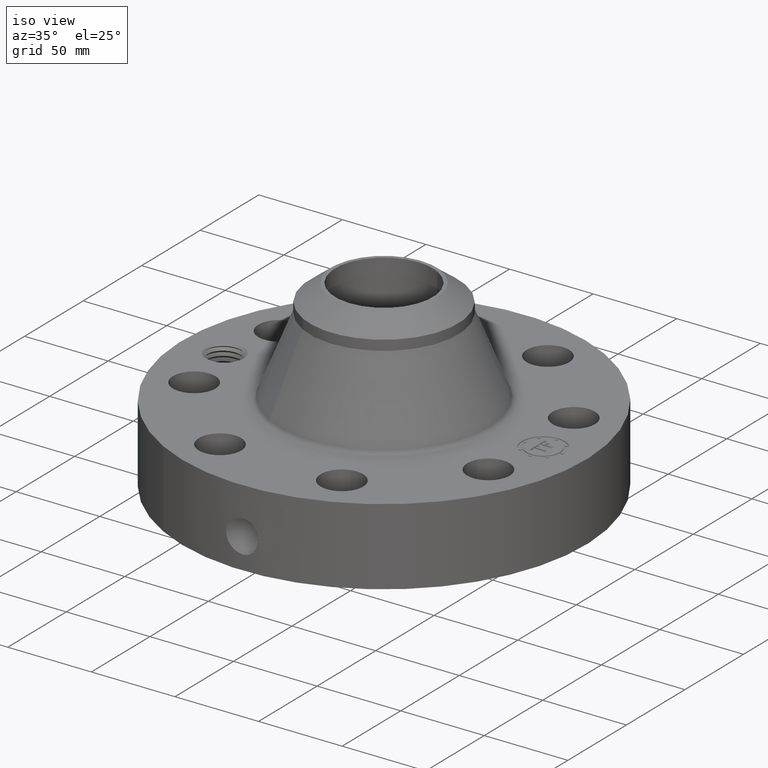
[diagram: clean part render]
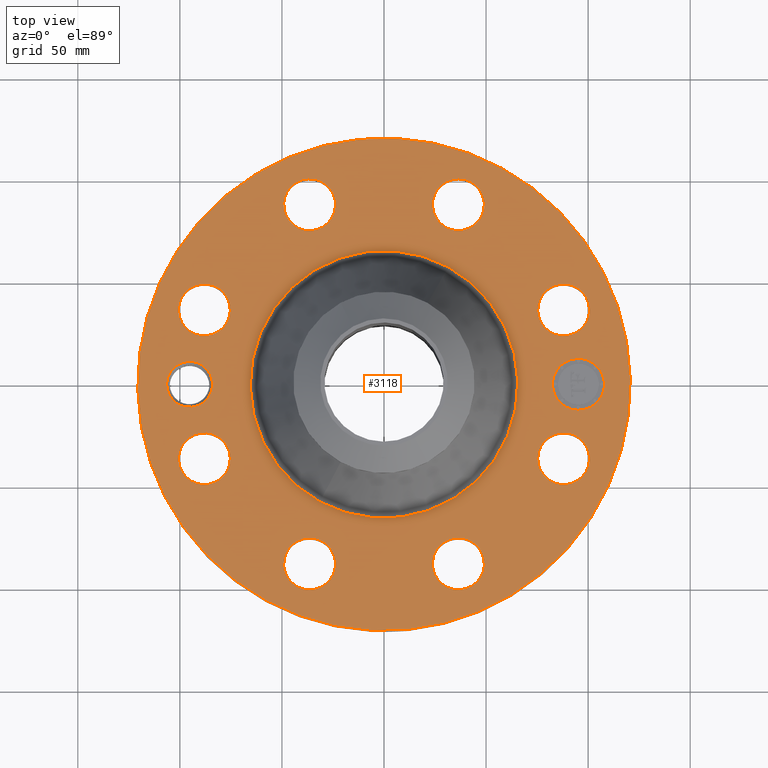
[diagram: tour spotlight — one face highlighted and labeled with its STEP entity id]
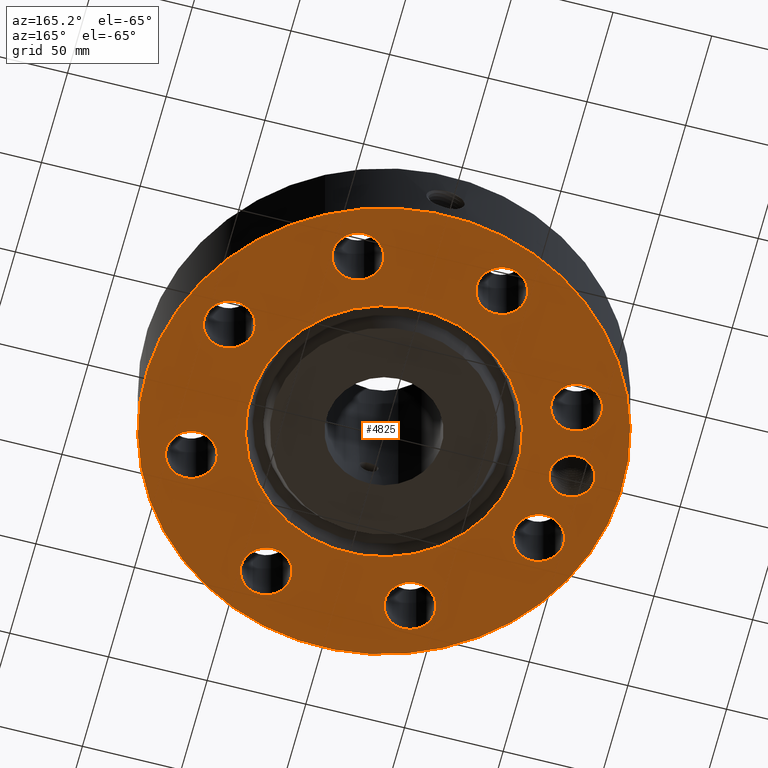
[diagram: tour spotlight — one face highlighted and labeled with its STEP entity id]
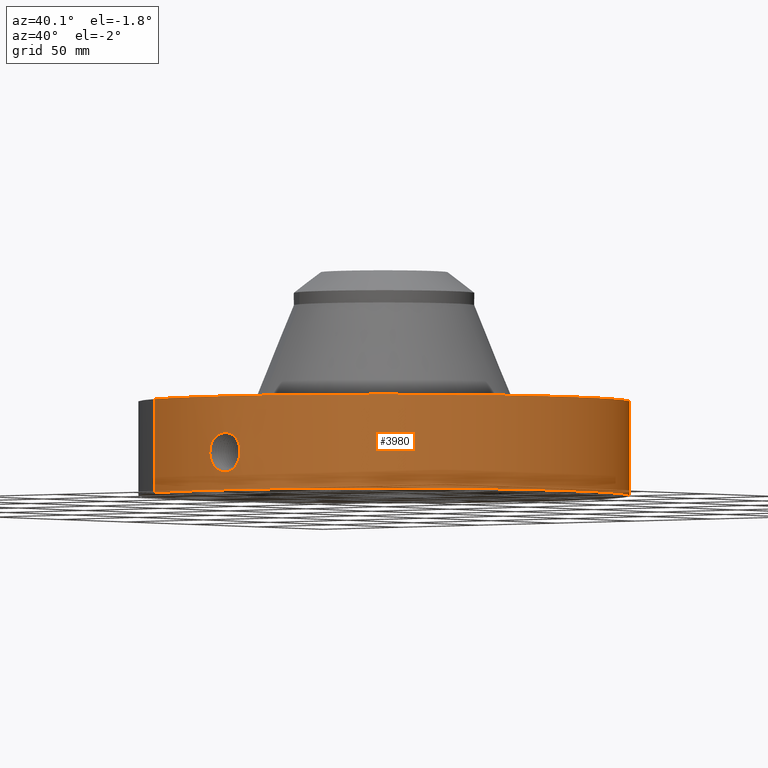
[diagram: tour spotlight — one face highlighted and labeled with its STEP entity id]
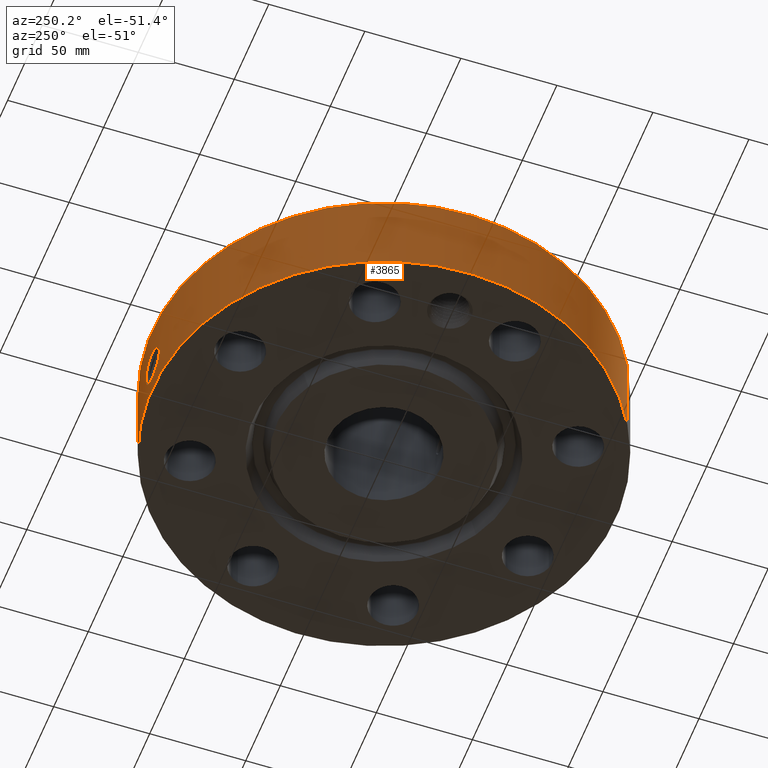
[diagram: tour spotlight — one face highlighted and labeled with its STEP entity id]
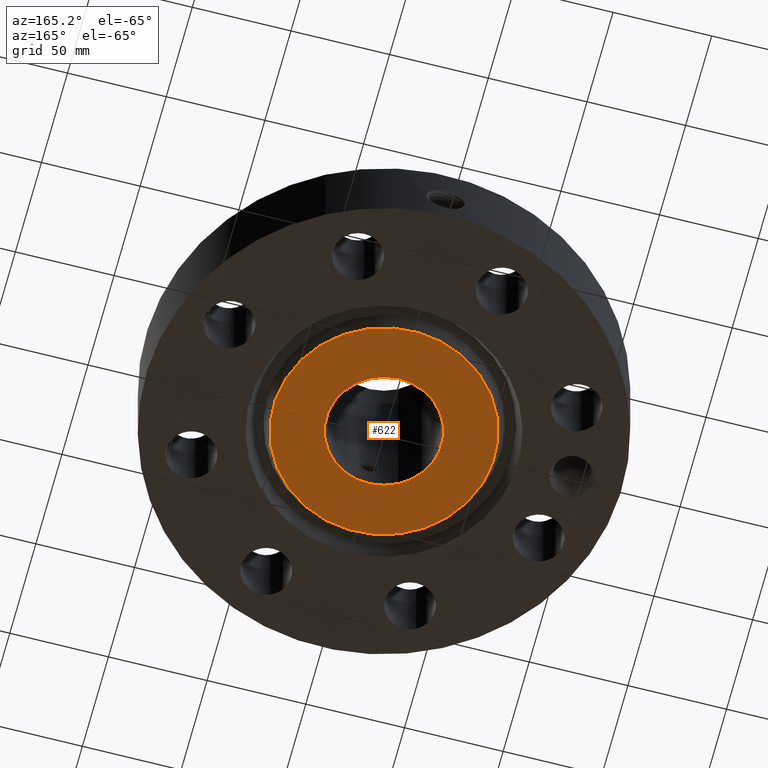
[diagram: tour spotlight — one face highlighted and labeled with its STEP entity id]
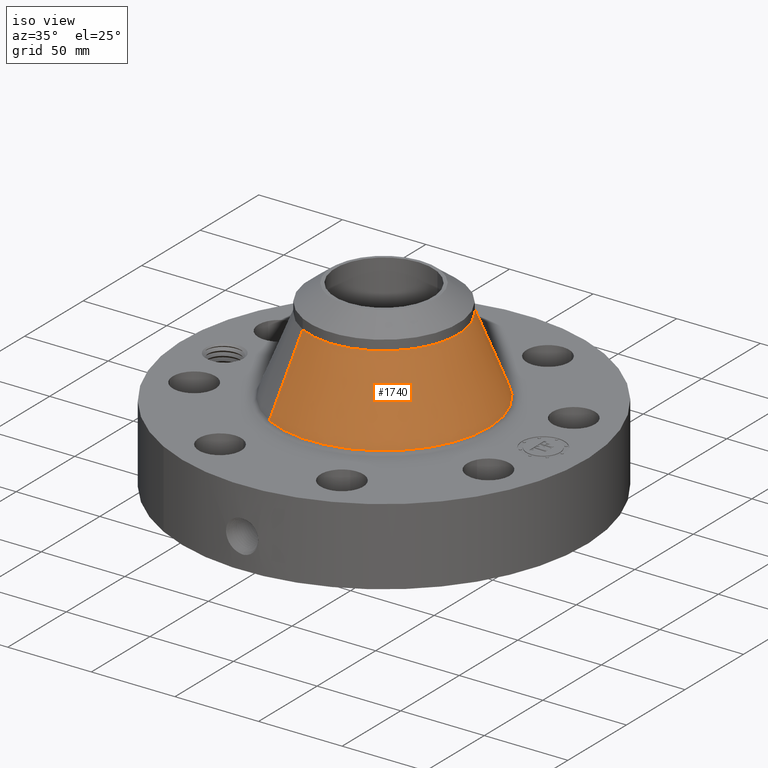
[diagram: tour spotlight — one face highlighted and labeled with its STEP entity id]
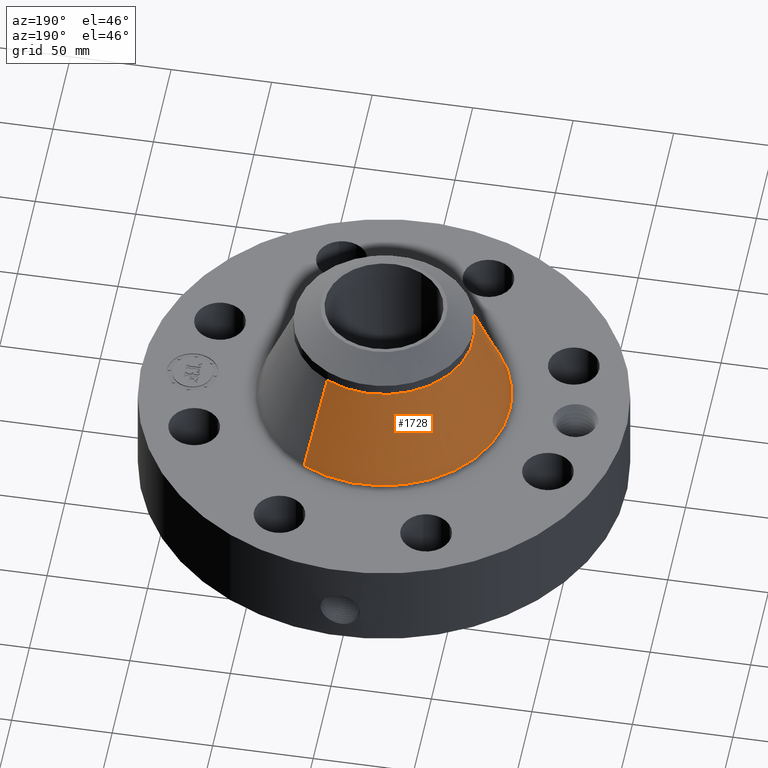
[diagram: tour spotlight — one face highlighted and labeled with its STEP entity id]
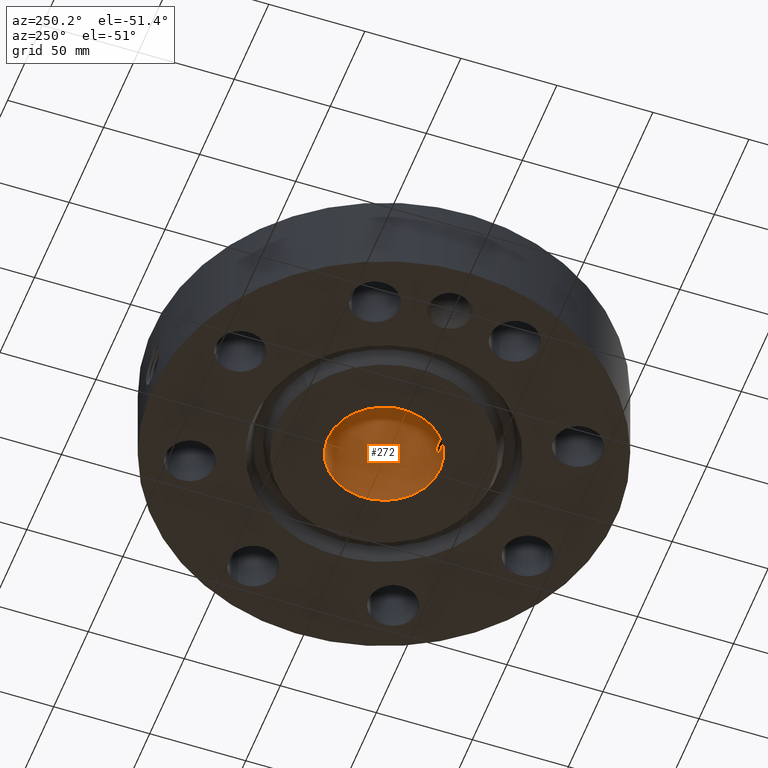
[diagram: tour spotlight — one face highlighted and labeled with its STEP entity id]
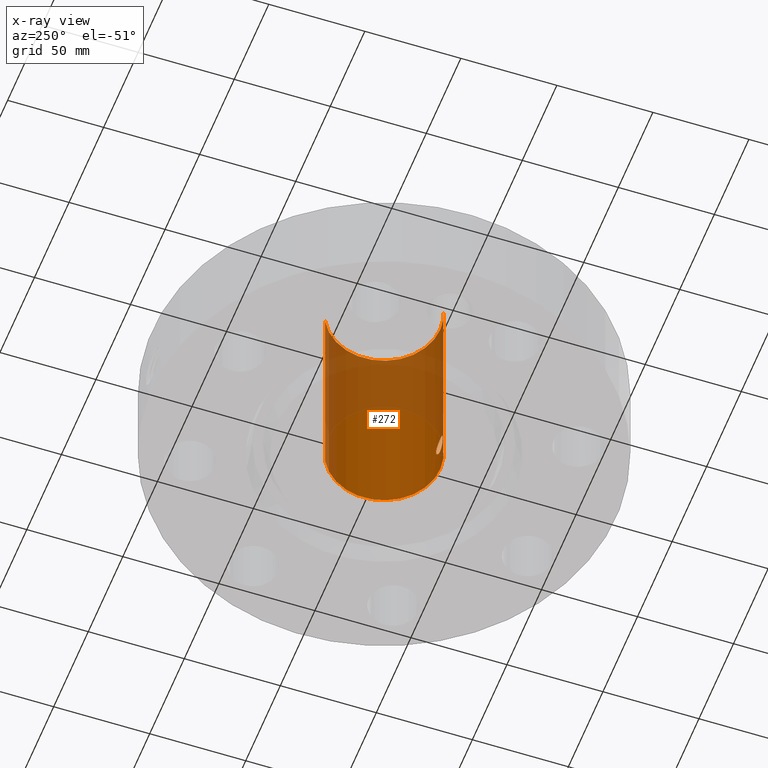
[diagram: x-ray of the same camera — body ghosted, this tour face saturated]
A machine part: a face-by-face anatomy tour. The part has 784 B-rep faces; the first image is the clean iso view, then the 8 largest visible faces are spotlighted one at a time (largest first), each with its STEP entity span.

Face 1 — top view, entity #3118. In plain terms, the highlighted planar face has unit normal (0, 0, -1).
Definition (entity closure, byte-faithful):
#2190=AXIS2_PLACEMENT_3D('Circle Axis2P3D',#2188,#2189,$) ;
#2216=AXIS2_PLACEMENT_3D('Circle Axis2P3D',#2214,#2215,$) ;
#2914=AXIS2_PLACEMENT_3D('Plane Axis2P3D',#2911,#2912,#2913) ;
#2918=AXIS2_PLACEMENT_3D('Circle Axis2P3D',#2916,#2917,$) ;
#2927=AXIS2_PLACEMENT_3D('Circle Axis2P3D',#2925,#2926,$) ;
#2936=AXIS2_PLACEMENT_3D('Circle Axis2P3D',#2934,#2935,$) ;
#2945=AXIS2_PLACEMENT_3D('Circle Axis2P3D',#2943,#2944,$) ;
#2954=AXIS2_PLACEMENT_3D('Circle Axis2P3D',#2952,#2953,$) ;
#2963=AXIS2_PLACEMENT_3D('Circle Axis2P3D',#2961,#2962,$) ;
#2976=AXIS2_PLACEMENT_3D('Circle Axis2P3D',#2974,#2975,$) ;
#2985=AXIS2_PLACEMENT_3D('Circle Axis2P3D',#2983,#2984,$) ;
#2994=AXIS2_PLACEMENT_3D('Circle Axis2P3D',#2992,#2993,$) ;
#3003=AXIS2_PLACEMENT_3D('Circle Axis2P3D',#3001,#3002,$) ;
#3012=AXIS2_PLACEMENT_3D('Circle Axis2P3D',#3010,#3011,$) ;
#3021=AXIS2_PLACEMENT_3D('Circle Axis2P3D',#3019,#3020,$) ;
#3030=AXIS2_PLACEMENT_3D('Circle Axis2P3D',#3028,#3029,$) ;
#3039=AXIS2_PLACEMENT_3D('Circle Axis2P3D',#3037,#3038,$) ;
#3048=AXIS2_PLACEMENT_3D('Circle Axis2P3D',#3046,#3047,$) ;
#3057=AXIS2_PLACEMENT_3D('Circle Axis2P3D',#3055,#3056,$) ;
#3066=AXIS2_PLACEMENT_3D('Circle Axis2P3D',#3064,#3065,$) ;
#3075=AXIS2_PLACEMENT_3D('Circle Axis2P3D',#3073,#3074,$) ;
#3084=AXIS2_PLACEMENT_3D('Circle Axis2P3D',#3082,#3083,$) ;
#3093=AXIS2_PLACEMENT_3D('Circle Axis2P3D',#3091,#3092,$) ;
#3102=AXIS2_PLACEMENT_3D('Circle Axis2P3D',#3100,#3101,$) ;
#3111=AXIS2_PLACEMENT_3D('Circle Axis2P3D',#3109,#3110,$) ;
#2188=CARTESIAN_POINT('Axis2P3D Location',(0.,0.,1.81200000001)) ;
#2192=CARTESIAN_POINT('Vertex',(-1.23742749971,-2.26509584472,1.81200000001)) ;
#2194=CARTESIAN_POINT('Vertex',(1.23742749971,2.26509584472,1.81200000001)) ;
#2214=CARTESIAN_POINT('Axis2P3D Location',(0.,0.,1.81200000001)) ;
#2911=CARTESIAN_POINT('Axis2P3D Location',(0.,4.75000000002,1.81200000001)) ;
#2916=CARTESIAN_POINT('Axis2P3D Location',(0.,0.,1.81200000001)) ;
#2920=CARTESIAN_POINT('Vertex',(2.27727130838,4.168517169,1.81200000001)) ;
#2922=CARTESIAN_POINT('Vertex',(-2.27727130838,-4.168517169,1.81200000001)) ;
#2925=CARTESIAN_POINT('Axis2P3D Location',(0.,0.,1.81200000001)) ;
#2934=CARTESIAN_POINT('Axis2P3D Location',(-3.75000000001,2.79741234551E-015,1.81200000001)) ;
#2938=CARTESIAN_POINT('Vertex',(-4.13859355842,0.212289628495,1.81200000001)) ;
#2940=CARTESIAN_POINT('Vertex',(-3.36140644161,-0.212289628495,1.81200000001)) ;
#2943=CARTESIAN_POINT('Axis2P3D Location',(-3.75000000001,2.79741234551E-015,1.81200000001)) ;
#2952=CARTESIAN_POINT('Axis2P3D Location',(3.46454824693,-1.43506287137,1.81200000001)) ;
#2956=CARTESIAN_POINT('Vertex',(3.02575696598,-1.19535010207,1.81200000001)) ;
#2958=CARTESIAN_POINT('Vertex',(3.90333952788,-1.67477564068,1.81200000001)) ;
#2961=CARTESIAN_POINT('Axis2P3D Location',(3.46454824693,-1.43506287137,1.81200000001)) ;
#2974=CARTESIAN_POINT('Axis2P3D Location',(1.43506287137,-3.46454824693,1.81200000001)) ;
#2978=CARTESIAN_POINT('Vertex',(1.57583263695,-3.94432306193,1.81200000001)) ;
#2980=CARTESIAN_POINT('Vertex',(1.2942931058,-2.98477343194,1.81200000001)) ;
#2983=CARTESIAN_POINT('Axis2P3D Location',(1.43506287137,-3.46454824693,1.81200000001)) ;
#2992=CARTESIAN_POINT('Axis2P3D Location',(-1.43506287137,-3.46454824693,1.81200000001)) ;
#2996=CARTESIAN_POINT('Vertex',(-1.67477564068,-3.90333952788,1.81200000001)) ;
#2998=CARTESIAN_POINT('Vertex',(-1.19535010207,-3.02575696598,1.81200000001)) ;
#3001=CARTESIAN_POINT('Axis2P3D Location',(-1.43506287137,-3.46454824693,1.81200000001)) ;
#3010=CARTESIAN_POINT('Axis2P3D Location',(-3.46454824693,-1.43506287137,1.81200000001)) ;
#3014=CARTESIAN_POINT('Vertex',(-3.94432306193,-1.57583263695,1.81200000001)) ;
#3016=CARTESIAN_POINT('Vertex',(-2.98477343194,-1.2942931058,1.81200000001)) ;
#3019=CARTESIAN_POINT('Axis2P3D Location',(-3.46454824693,-1.43506287137,1.81200000001)) ;
#3028=CARTESIAN_POINT('Axis2P3D Location',(-3.46454824693,1.43506287137,1.81200000001)) ;
#3032=CARTESIAN_POINT('Vertex',(-3.90333952788,1.67477564068,1.81200000001)) ;
#3034=CARTESIAN_POINT('Vertex',(-3.02575696598,1.19535010207,1.81200000001)) ;
#3037=CARTESIAN_POINT('Axis2P3D Location',(-3.46454824693,1.43506287137,1.81200000001)) ;
#3046=CARTESIAN_POINT('Axis2P3D Location',(-1.43506287137,3.46454824693,1.81200000001)) ;
#3050=CARTESIAN_POINT('Vertex',(-1.57583263695,3.94432306193,1.81200000001)) ;
#3052=CARTESIAN_POINT('Vertex',(-1.2942931058,2.98477343194,1.81200000001)) ;
#3055=CARTESIAN_POINT('Axis2P3D Location',(-1.43506287137,3.46454824693,1.81200000001)) ;
#3064=CARTESIAN_POINT('Axis2P3D Location',(1.43506287137,3.46454824693,1.81200000001)) ;
#3068=CARTESIAN_POINT('Vertex',(1.67477564068,3.90333952788,1.81200000001)) ;
#3070=CARTESIAN_POINT('Vertex',(1.19535010207,3.02575696598,1.81200000001)) ;
#3073=CARTESIAN_POINT('Axis2P3D Location',(1.43506287137,3.46454824693,1.81200000001)) ;
#3082=CARTESIAN_POINT('Axis2P3D Location',(3.46454824693,1.43506287137,1.81200000001)) ;
#3086=CARTESIAN_POINT('Vertex',(3.94432306193,1.57583263695,1.81200000001)) ;
#3088=CARTESIAN_POINT('Vertex',(2.98477343194,1.2942931058,1.81200000001)) ;
#3091=CARTESIAN_POINT('Axis2P3D Location',(3.46454824693,1.43506287137,1.81200000001)) ;
#3100=CARTESIAN_POINT('Axis2P3D Location',(3.75000000002,-9.51120197474E-015,1.81200000001)) ;
#3104=CARTESIAN_POINT('Vertex',(3.75000000001,0.499999995002,1.81200000001)) ;
#3106=CARTESIAN_POINT('Vertex',(3.75000000002,-0.499999995002,1.81200000001)) ;
#3109=CARTESIAN_POINT('Axis2P3D Location',(3.75000000002,-1.00706844438E-014,1.81200000001)) ;
#2189=DIRECTION('Axis2P3D Direction',(0.,0.,-0.0393700787402)) ;
#2215=DIRECTION('Axis2P3D Direction',(0.,0.,-0.0393700787402)) ;
#2912=DIRECTION('Axis2P3D Direction',(0.,0.,-0.0393700787402)) ;
#2913=DIRECTION('Axis2P3D XDirection',(0.0393700787402,0.,0.)) ;
#2917=DIRECTION('Axis2P3D Direction',(0.,0.,-0.0393700787402)) ;
#2926=DIRECTION('Axis2P3D Direction',(0.,0.,-0.0393700787402)) ;
#2935=DIRECTION('Axis2P3D Direction',(0.,0.,-0.0393700787402)) ;
#2944=DIRECTION('Axis2P3D Direction',(0.,0.,-0.0393700787402)) ;
#2953=DIRECTION('Axis2P3D Direction',(0.,0.,-0.0393700787402)) ;
#2962=DIRECTION('Axis2P3D Direction',(0.,0.,-0.0393700787402)) ;
#2975=DIRECTION('Axis2P3D Direction',(0.,0.,-0.0393700787402)) ;
#2984=DIRECTION('Axis2P3D Direction',(0.,0.,-0.0393700787402)) ;
#2993=DIRECTION('Axis2P3D Direction',(0.,0.,-0.0393700787402)) ;
#3002=DIRECTION('Axis2P3D Direction',(0.,0.,-0.0393700787402)) ;
#3011=DIRECTION('Axis2P3D Direction',(0.,0.,-0.0393700787402)) ;
#3020=DIRECTION('Axis2P3D Direction',(0.,0.,-0.0393700787402)) ;
#3029=DIRECTION('Axis2P3D Direction',(0.,0.,-0.0393700787402)) ;
#3038=DIRECTION('Axis2P3D Direction',(0.,0.,-0.0393700787402)) ;
#3047=DIRECTION('Axis2P3D Direction',(0.,0.,-0.0393700787402)) ;
#3056=DIRECTION('Axis2P3D Direction',(0.,0.,-0.0393700787402)) ;
#3065=DIRECTION('Axis2P3D Direction',(0.,0.,-0.0393700787402)) ;
#3074=DIRECTION('Axis2P3D Direction',(0.,0.,-0.0393700787402)) ;
#3083=DIRECTION('Axis2P3D Direction',(0.,0.,-0.0393700787402)) ;
#3092=DIRECTION('Axis2P3D Direction',(0.,0.,-0.0393700787402)) ;
#3101=DIRECTION('Axis2P3D Direction',(0.,0.,-0.0393700787402)) ;
#3110=DIRECTION('Axis2P3D Direction',(0.,0.,-0.0393700787402)) ;
#2931=ORIENTED_EDGE('',*,*,#2924,.F.) ;
#2932=ORIENTED_EDGE('',*,*,#2929,.F.) ;
#2949=ORIENTED_EDGE('',*,*,#2942,.T.) ;
#2950=ORIENTED_EDGE('',*,*,#2947,.T.) ;
#2967=ORIENTED_EDGE('',*,*,#2960,.T.) ;
#2968=ORIENTED_EDGE('',*,*,#2965,.T.) ;
#2971=ORIENTED_EDGE('',*,*,#2196,.T.) ;
#2972=ORIENTED_EDGE('',*,*,#2218,.T.) ;
#2989=ORIENTED_EDGE('',*,*,#2982,.T.) ;
#2990=ORIENTED_EDGE('',*,*,#2987,.T.) ;
#3007=ORIENTED_EDGE('',*,*,#3000,.T.) ;
#3008=ORIENTED_EDGE('',*,*,#3005,.T.) ;
#3025=ORIENTED_EDGE('',*,*,#3018,.T.) ;
#3026=ORIENTED_EDGE('',*,*,#3023,.T.) ;
#3043=ORIENTED_EDGE('',*,*,#3036,.T.) ;
#3044=ORIENTED_EDGE('',*,*,#3041,.T.) ;
#3061=ORIENTED_EDGE('',*,*,#3054,.T.) ;
#3062=ORIENTED_EDGE('',*,*,#3059,.T.) ;
#3079=ORIENTED_EDGE('',*,*,#3072,.T.) ;
#3080=ORIENTED_EDGE('',*,*,#3077,.T.) ;
#3097=ORIENTED_EDGE('',*,*,#3090,.T.) ;
#3098=ORIENTED_EDGE('',*,*,#3095,.T.) ;
#3115=ORIENTED_EDGE('',*,*,#3108,.T.) ;
#3116=ORIENTED_EDGE('',*,*,#3113,.T.) ;
#2951=FACE_BOUND('',#2948,.T.) ;
#2969=FACE_BOUND('',#2966,.T.) ;
#2973=FACE_BOUND('',#2970,.T.) ;
#2991=FACE_BOUND('',#2988,.T.) ;
#3009=FACE_BOUND('',#3006,.T.) ;
#3027=FACE_BOUND('',#3024,.T.) ;
#3045=FACE_BOUND('',#3042,.T.) ;
#3063=FACE_BOUND('',#3060,.T.) ;
#3081=FACE_BOUND('',#3078,.T.) ;
#3099=FACE_BOUND('',#3096,.T.) ;
#3117=FACE_BOUND('',#3114,.T.) ;
#3118=ADVANCED_FACE('PartBody',(#2933,#2951,#2969,#2973,#2991,#3009,#3027,#3045,#3063,#3081,#3099,#3117),#2915,.F.) ;
#2191=CIRCLE('generated circle',#2190,2.58106295987) ;
#2217=CIRCLE('generated circle',#2216,2.58106295987) ;
#2919=CIRCLE('generated circle',#2918,4.75000000002) ;
#2928=CIRCLE('generated circle',#2927,4.75000000002) ;
#2937=CIRCLE('generated circle',#2936,0.442800000002) ;
#2946=CIRCLE('generated circle',#2945,0.442800000002) ;
#2955=CIRCLE('generated circle',#2954,0.500000000002) ;
#2964=CIRCLE('generated circle',#2963,0.500000000002) ;
#2977=CIRCLE('generated circle',#2976,0.500000000002) ;
#2986=CIRCLE('generated circle',#2985,0.500000000002) ;
#2995=CIRCLE('generated circle',#2994,0.500000000002) ;
#3004=CIRCLE('generated circle',#3003,0.500000000002) ;
#3013=CIRCLE('generated circle',#3012,0.500000000002) ;
#3022=CIRCLE('generated circle',#3021,0.500000000002) ;
#3031=CIRCLE('generated circle',#3030,0.500000000002) ;
#3040=CIRCLE('generated circle',#3039,0.500000000002) ;
#3049=CIRCLE('generated circle',#3048,0.500000000002) ;
#3058=CIRCLE('generated circle',#3057,0.500000000002) ;
#3067=CIRCLE('generated circle',#3066,0.500000000002) ;
#3076=CIRCLE('generated circle',#3075,0.500000000002) ;
#3085=CIRCLE('generated circle',#3084,0.500000000002) ;
#3094=CIRCLE('generated circle',#3093,0.500000000002) ;
#3103=CIRCLE('generated circle',#3102,0.499999995002) ;
#3112=CIRCLE('generated circle',#3111,0.499999995002) ;
#2196=EDGE_CURVE('',#2193,#2195,#2191,.T.) ;
#2218=EDGE_CURVE('',#2195,#2193,#2217,.T.) ;
#2924=EDGE_CURVE('',#2921,#2923,#2919,.T.) ;
#2929=EDGE_CURVE('',#2923,#2921,#2928,.T.) ;
#2942=EDGE_CURVE('',#2939,#2941,#2937,.T.) ;
#2947=EDGE_CURVE('',#2941,#2939,#2946,.T.) ;
#2960=EDGE_CURVE('',#2957,#2959,#2955,.T.) ;
#2965=EDGE_CURVE('',#2959,#2957,#2964,.T.) ;
#2982=EDGE_CURVE('',#2979,#2981,#2977,.T.) ;
#2987=EDGE_CURVE('',#2981,#2979,#2986,.T.) ;
#3000=EDGE_CURVE('',#2997,#2999,#2995,.T.) ;
#3005=EDGE_CURVE('',#2999,#2997,#3004,.T.) ;
#3018=EDGE_CURVE('',#3015,#3017,#3013,.T.) ;
#3023=EDGE_CURVE('',#3017,#3015,#3022,.T.) ;
#3036=EDGE_CURVE('',#3033,#3035,#3031,.T.) ;
#3041=EDGE_CURVE('',#3035,#3033,#3040,.T.) ;
#3054=EDGE_CURVE('',#3051,#3053,#3049,.T.) ;
#3059=EDGE_CURVE('',#3053,#3051,#3058,.T.) ;
#3072=EDGE_CURVE('',#3069,#3071,#3067,.T.) ;
#3077=EDGE_CURVE('',#3071,#3069,#3076,.T.) ;
#3090=EDGE_CURVE('',#3087,#3089,#3085,.T.) ;
#3095=EDGE_CURVE('',#3089,#3087,#3094,.T.) ;
#3108=EDGE_CURVE('',#3105,#3107,#3103,.T.) ;
#3113=EDGE_CURVE('',#3107,#3105,#3112,.T.) ;
#2930=EDGE_LOOP('',(#2931,#2932)) ;
#2948=EDGE_LOOP('',(#2949,#2950)) ;
#2966=EDGE_LOOP('',(#2967,#2968)) ;
#2970=EDGE_LOOP('',(#2971,#2972)) ;
#2988=EDGE_LOOP('',(#2989,#2990)) ;
#3006=EDGE_LOOP('',(#3007,#3008)) ;
#3024=EDGE_LOOP('',(#3025,#3026)) ;
#3042=EDGE_LOOP('',(#3043,#3044)) ;
#3060=EDGE_LOOP('',(#3061,#3062)) ;
#3078=EDGE_LOOP('',(#3079,#3080)) ;
#3096=EDGE_LOOP('',(#3097,#3098)) ;
#3114=EDGE_LOOP('',(#3115,#3116)) ;
#2933=FACE_OUTER_BOUND('',#2930,.T.) ;
#2915=PLANE('',#2914) ;
#2193=VERTEX_POINT('',#2192) ;
#2195=VERTEX_POINT('',#2194) ;
#2921=VERTEX_POINT('',#2920) ;
#2923=VERTEX_POINT('',#2922) ;
#2939=VERTEX_POINT('',#2938) ;
#2941=VERTEX_POINT('',#2940) ;
#2957=VERTEX_POINT('',#2956) ;
#2959=VERTEX_POINT('',#2958) ;
#2979=VERTEX_POINT('',#2978) ;
#2981=VERTEX_POINT('',#2980) ;
#2997=VERTEX_POINT('',#2996) ;
#2999=VERTEX_POINT('',#2998) ;
#3015=VERTEX_POINT('',#3014) ;
#3017=VERTEX_POINT('',#3016) ;
#3033=VERTEX_POINT('',#3032) ;
#3035=VERTEX_POINT('',#3034) ;
#3051=VERTEX_POINT('',#3050) ;
#3053=VERTEX_POINT('',#3052) ;
#3069=VERTEX_POINT('',#3068) ;
#3071=VERTEX_POINT('',#3070) ;
#3087=VERTEX_POINT('',#3086) ;
#3089=VERTEX_POINT('',#3088) ;
#3105=VERTEX_POINT('',#3104) ;
#3107=VERTEX_POINT('',#3106) ;

Face 2 — auxiliary view, entity #4825. In plain terms, the highlighted planar face has unit normal (0, 0, -1).
Definition (entity closure, byte-faithful):
#598=AXIS2_PLACEMENT_3D('Plane Axis2P3D',#595,#596,#597) ;
#3440=AXIS2_PLACEMENT_3D('Circle Axis2P3D',#3438,#3439,$) ;
#3466=AXIS2_PLACEMENT_3D('Circle Axis2P3D',#3464,#3465,$) ;
#3739=AXIS2_PLACEMENT_3D('Circle Axis2P3D',#3737,#3738,$) ;
#3868=AXIS2_PLACEMENT_3D('Circle Axis2P3D',#3866,#3867,$) ;
#4142=AXIS2_PLACEMENT_3D('Circle Axis2P3D',#4140,#4141,$) ;
#4161=AXIS2_PLACEMENT_3D('Circle Axis2P3D',#4159,#4160,$) ;
#4185=AXIS2_PLACEMENT_3D('Circle Axis2P3D',#4183,#4184,$) ;
#4204=AXIS2_PLACEMENT_3D('Circle Axis2P3D',#4202,#4203,$) ;
#4228=AXIS2_PLACEMENT_3D('Circle Axis2P3D',#4226,#4227,$) ;
#4247=AXIS2_PLACEMENT_3D('Circle Axis2P3D',#4245,#4246,$) ;
#4271=AXIS2_PLACEMENT_3D('Circle Axis2P3D',#4269,#4270,$) ;
#4290=AXIS2_PLACEMENT_3D('Circle Axis2P3D',#4288,#4289,$) ;
#4314=AXIS2_PLACEMENT_3D('Circle Axis2P3D',#4312,#4313,$) ;
#4333=AXIS2_PLACEMENT_3D('Circle Axis2P3D',#4331,#4332,$) ;
#4357=AXIS2_PLACEMENT_3D('Circle Axis2P3D',#4355,#4356,$) ;
#4376=AXIS2_PLACEMENT_3D('Circle Axis2P3D',#4374,#4375,$) ;
#4400=AXIS2_PLACEMENT_3D('Circle Axis2P3D',#4398,#4399,$) ;
#4419=AXIS2_PLACEMENT_3D('Circle Axis2P3D',#4417,#4418,$) ;
#4443=AXIS2_PLACEMENT_3D('Circle Axis2P3D',#4441,#4442,$) ;
#4462=AXIS2_PLACEMENT_3D('Circle Axis2P3D',#4460,#4461,$) ;
#4773=AXIS2_PLACEMENT_3D('Circle Axis2P3D',#4771,#4772,$) ;
#4782=AXIS2_PLACEMENT_3D('Circle Axis2P3D',#4780,#4781,$) ;
#595=CARTESIAN_POINT('Axis2P3D Location',(0.,1.15,0.)) ;
#3438=CARTESIAN_POINT('Axis2P3D Location',(0.,0.,0.)) ;
#3442=CARTESIAN_POINT('Vertex',(-1.28102503916,2.34490060538,0.)) ;
#3444=CARTESIAN_POINT('Vertex',(1.28102503916,-2.34490060538,0.)) ;
#3464=CARTESIAN_POINT('Axis2P3D Location',(0.,0.,0.)) ;
#3737=CARTESIAN_POINT('Axis2P3D Location',(0.,0.,2.79741234551E-016)) ;
#3741=CARTESIAN_POINT('Vertex',(-2.27727130838,-4.168517169,2.79741234551E-016)) ;
#3743=CARTESIAN_POINT('Vertex',(2.27727130838,4.168517169,2.79741234551E-016)) ;
#3866=CARTESIAN_POINT('Axis2P3D Location',(0.,0.,2.79741234551E-016)) ;
#4137=CARTESIAN_POINT('Vertex',(3.90333952788,-1.67477564068,0.)) ;
#4140=CARTESIAN_POINT('Axis2P3D Location',(3.46454824693,-1.43506287137,0.)) ;
#4144=CARTESIAN_POINT('Vertex',(3.02575696598,-1.19535010207,0.)) ;
#4159=CARTESIAN_POINT('Axis2P3D Location',(3.46454824693,-1.43506287137,0.)) ;
#4180=CARTESIAN_POINT('Vertex',(1.2942931058,-2.98477343194,0.)) ;
#4183=CARTESIAN_POINT('Axis2P3D Location',(1.43506287137,-3.46454824693,0.)) ;
#4187=CARTESIAN_POINT('Vertex',(1.57583263695,-3.94432306193,0.)) ;
#4202=CARTESIAN_POINT('Axis2P3D Location',(1.43506287137,-3.46454824693,0.)) ;
#4223=CARTESIAN_POINT('Vertex',(-1.19535010207,-3.02575696598,0.)) ;
#4226=CARTESIAN_POINT('Axis2P3D Location',(-1.43506287137,-3.46454824693,0.)) ;
#4230=CARTESIAN_POINT('Vertex',(-1.67477564068,-3.90333952788,0.)) ;
#4245=CARTESIAN_POINT('Axis2P3D Location',(-1.43506287137,-3.46454824693,0.)) ;
#4266=CARTESIAN_POINT('Vertex',(-2.98477343194,-1.2942931058,0.)) ;
#4269=CARTESIAN_POINT('Axis2P3D Location',(-3.46454824693,-1.43506287137,0.)) ;
#4273=CARTESIAN_POINT('Vertex',(-3.94432306193,-1.57583263695,0.)) ;
#4288=CARTESIAN_POINT('Axis2P3D Location',(-3.46454824693,-1.43506287137,0.)) ;
#4309=CARTESIAN_POINT('Vertex',(-3.02575696598,1.19535010207,0.)) ;
#4312=CARTESIAN_POINT('Axis2P3D Location',(-3.46454824693,1.43506287137,0.)) ;
#4316=CARTESIAN_POINT('Vertex',(-3.90333952788,1.67477564068,0.)) ;
#4331=CARTESIAN_POINT('Axis2P3D Location',(-3.46454824693,1.43506287137,0.)) ;
#4352=CARTESIAN_POINT('Vertex',(-1.2942931058,2.98477343194,0.)) ;
#4355=CARTESIAN_POINT('Axis2P3D Location',(-1.43506287137,3.46454824693,0.)) ;
#4359=CARTESIAN_POINT('Vertex',(-1.57583263695,3.94432306193,0.)) ;
#4374=CARTESIAN_POINT('Axis2P3D Location',(-1.43506287137,3.46454824693,0.)) ;
#4395=CARTESIAN_POINT('Vertex',(1.19535010207,3.02575696598,0.)) ;
#4398=CARTESIAN_POINT('Axis2P3D Location',(1.43506287137,3.46454824693,0.)) ;
#4402=CARTESIAN_POINT('Vertex',(1.67477564068,3.90333952788,0.)) ;
#4417=CARTESIAN_POINT('Axis2P3D Location',(1.43506287137,3.46454824693,0.)) ;
#4438=CARTESIAN_POINT('Vertex',(2.98477343194,1.2942931058,0.)) ;
#4441=CARTESIAN_POINT('Axis2P3D Location',(3.46454824693,1.43506287137,0.)) ;
#4445=CARTESIAN_POINT('Vertex',(3.94432306193,1.57583263695,0.)) ;
#4460=CARTESIAN_POINT('Axis2P3D Location',(3.46454824693,1.43506287137,0.)) ;
#4771=CARTESIAN_POINT('Axis2P3D Location',(-3.75000000001,9.79094320929E-016,0.)) ;
#4775=CARTESIAN_POINT('Vertex',(-3.36140644161,-0.212289628495,0.)) ;
#4777=CARTESIAN_POINT('Vertex',(-4.13859355842,0.212289628495,0.)) ;
#4780=CARTESIAN_POINT('Axis2P3D Location',(-3.75000000001,9.79094320929E-016,0.)) ;
#596=DIRECTION('Axis2P3D Direction',(0.,0.,-0.0393700787402)) ;
#597=DIRECTION('Axis2P3D XDirection',(0.0393700787402,0.,0.)) ;
#3439=DIRECTION('Axis2P3D Direction',(0.,0.,-0.0393700787402)) ;
#3465=DIRECTION('Axis2P3D Direction',(0.,0.,-0.0393700787402)) ;
#3738=DIRECTION('Axis2P3D Direction',(0.,0.,-0.0393700787402)) ;
#3867=DIRECTION('Axis2P3D Direction',(0.,0.,-0.0393700787402)) ;
#4141=DIRECTION('Axis2P3D Direction',(0.,-0.,-0.0393700787402)) ;
#4160=DIRECTION('Axis2P3D Direction',(0.,-0.,-0.0393700787402)) ;
#4184=DIRECTION('Axis2P3D Direction',(0.,-0.,-0.0393700787402)) ;
#4203=DIRECTION('Axis2P3D Direction',(0.,-0.,-0.0393700787402)) ;
#4227=DIRECTION('Axis2P3D Direction',(0.,-0.,-0.0393700787402)) ;
#4246=DIRECTION('Axis2P3D Direction',(0.,-0.,-0.0393700787402)) ;
#4270=DIRECTION('Axis2P3D Direction',(-0.,0.,-0.0393700787402)) ;
#4289=DIRECTION('Axis2P3D Direction',(-0.,0.,-0.0393700787402)) ;
#4313=DIRECTION('Axis2P3D Direction',(-0.,0.,-0.0393700787402)) ;
#4332=DIRECTION('Axis2P3D Direction',(-0.,0.,-0.0393700787402)) ;
#4356=DIRECTION('Axis2P3D Direction',(0.,0.,-0.0393700787402)) ;
#4375=DIRECTION('Axis2P3D Direction',(0.,0.,-0.0393700787402)) ;
#4399=DIRECTION('Axis2P3D Direction',(0.,0.,-0.0393700787402)) ;
#4418=DIRECTION('Axis2P3D Direction',(0.,0.,-0.0393700787402)) ;
#4442=DIRECTION('Axis2P3D Direction',(0.,0.,-0.0393700787402)) ;
#4461=DIRECTION('Axis2P3D Direction',(0.,0.,-0.0393700787402)) ;
#4772=DIRECTION('Axis2P3D Direction',(0.,0.,-0.0393700787402)) ;
#4781=DIRECTION('Axis2P3D Direction',(0.,0.,-0.0393700787402)) ;
#4768=ORIENTED_EDGE('',*,*,#3745,.T.) ;
#4769=ORIENTED_EDGE('',*,*,#3870,.T.) ;
#4786=ORIENTED_EDGE('',*,*,#4779,.F.) ;
#4787=ORIENTED_EDGE('',*,*,#4784,.F.) ;
#4790=ORIENTED_EDGE('',*,*,#4146,.F.) ;
#4791=ORIENTED_EDGE('',*,*,#4163,.F.) ;
#4794=ORIENTED_EDGE('',*,*,#4189,.F.) ;
#4795=ORIENTED_EDGE('',*,*,#4206,.F.) ;
#4798=ORIENTED_EDGE('',*,*,#4232,.F.) ;
#4799=ORIENTED_EDGE('',*,*,#4249,.F.) ;
#4802=ORIENTED_EDGE('',*,*,#4275,.F.) ;
#4803=ORIENTED_EDGE('',*,*,#4292,.F.) ;
#4806=ORIENTED_EDGE('',*,*,#4318,.F.) ;
#4807=ORIENTED_EDGE('',*,*,#4335,.F.) ;
#4810=ORIENTED_EDGE('',*,*,#4361,.F.) ;
#4811=ORIENTED_EDGE('',*,*,#4378,.F.) ;
#4814=ORIENTED_EDGE('',*,*,#4404,.F.) ;
#4815=ORIENTED_EDGE('',*,*,#4421,.F.) ;
#4818=ORIENTED_EDGE('',*,*,#4447,.F.) ;
#4819=ORIENTED_EDGE('',*,*,#4464,.F.) ;
#4822=ORIENTED_EDGE('',*,*,#3468,.F.) ;
#4823=ORIENTED_EDGE('',*,*,#3446,.F.) ;
#4788=FACE_BOUND('',#4785,.T.) ;
#4792=FACE_BOUND('',#4789,.T.) ;
#4796=FACE_BOUND('',#4793,.T.) ;
#4800=FACE_BOUND('',#4797,.T.) ;
#4804=FACE_BOUND('',#4801,.T.) ;
#4808=FACE_BOUND('',#4805,.T.) ;
#4812=FACE_BOUND('',#4809,.T.) ;
#4816=FACE_BOUND('',#4813,.T.) ;
#4820=FACE_BOUND('',#4817,.T.) ;
#4824=FACE_BOUND('',#4821,.T.) ;
#4825=ADVANCED_FACE('PartBody',(#4770,#4788,#4792,#4796,#4800,#4804,#4808,#4812,#4816,#4820,#4824),#599,.T.) ;
#3441=CIRCLE('generated circle',#3440,2.67200000001) ;
#3467=CIRCLE('generated circle',#3466,2.67200000001) ;
#3740=CIRCLE('generated circle',#3739,4.75000000002) ;
#3869=CIRCLE('generated circle',#3868,4.75000000002) ;
#4143=CIRCLE('generated circle',#4142,0.500000000002) ;
#4162=CIRCLE('generated circle',#4161,0.500000000002) ;
#4186=CIRCLE('generated circle',#4185,0.500000000002) ;
#4205=CIRCLE('generated circle',#4204,0.500000000002) ;
#4229=CIRCLE('generated circle',#4228,0.500000000002) ;
#4248=CIRCLE('generated circle',#4247,0.500000000002) ;
#4272=CIRCLE('generated circle',#4271,0.500000000002) ;
#4291=CIRCLE('generated circle',#4290,0.500000000002) ;
#4315=CIRCLE('generated circle',#4314,0.500000000002) ;
#4334=CIRCLE('generated circle',#4333,0.500000000002) ;
#4358=CIRCLE('generated circle',#4357,0.500000000002) ;
#4377=CIRCLE('generated circle',#4376,0.500000000002) ;
#4401=CIRCLE('generated circle',#4400,0.500000000002) ;
#4420=CIRCLE('generated circle',#4419,0.500000000002) ;
#4444=CIRCLE('generated circle',#4443,0.500000000002) ;
#4463=CIRCLE('generated circle',#4462,0.500000000002) ;
#4774=CIRCLE('generated circle',#4773,0.442800000002) ;
#4783=CIRCLE('generated circle',#4782,0.442800000002) ;
#3446=EDGE_CURVE('',#3443,#3445,#3441,.T.) ;
#3468=EDGE_CURVE('',#3445,#3443,#3467,.T.) ;
#3745=EDGE_CURVE('',#3742,#3744,#3740,.T.) ;
#3870=EDGE_CURVE('',#3744,#3742,#3869,.T.) ;
#4146=EDGE_CURVE('',#4138,#4145,#4143,.T.) ;
#4163=EDGE_CURVE('',#4145,#4138,#4162,.T.) ;
#4189=EDGE_CURVE('',#4181,#4188,#4186,.T.) ;
#4206=EDGE_CURVE('',#4188,#4181,#4205,.T.) ;
#4232=EDGE_CURVE('',#4224,#4231,#4229,.T.) ;
#4249=EDGE_CURVE('',#4231,#4224,#4248,.T.) ;
#4275=EDGE_CURVE('',#4267,#4274,#4272,.T.) ;
#4292=EDGE_CURVE('',#4274,#4267,#4291,.T.) ;
#4318=EDGE_CURVE('',#4310,#4317,#4315,.T.) ;
#4335=EDGE_CURVE('',#4317,#4310,#4334,.T.) ;
#4361=EDGE_CURVE('',#4353,#4360,#4358,.T.) ;
#4378=EDGE_CURVE('',#4360,#4353,#4377,.T.) ;
#4404=EDGE_CURVE('',#4396,#4403,#4401,.T.) ;
#4421=EDGE_CURVE('',#4403,#4396,#4420,.T.) ;
#4447=EDGE_CURVE('',#4439,#4446,#4444,.T.) ;
#4464=EDGE_CURVE('',#4446,#4439,#4463,.T.) ;
#4779=EDGE_CURVE('',#4776,#4778,#4774,.T.) ;
#4784=EDGE_CURVE('',#4778,#4776,#4783,.T.) ;
#4767=EDGE_LOOP('',(#4768,#4769)) ;
#4785=EDGE_LOOP('',(#4786,#4787)) ;
#4789=EDGE_LOOP('',(#4790,#4791)) ;
#4793=EDGE_LOOP('',(#4794,#4795)) ;
#4797=EDGE_LOOP('',(#4798,#4799)) ;
#4801=EDGE_LOOP('',(#4802,#4803)) ;
#4805=EDGE_LOOP('',(#4806,#4807)) ;
#4809=EDGE_LOOP('',(#4810,#4811)) ;
#4813=EDGE_LOOP('',(#4814,#4815)) ;
#4817=EDGE_LOOP('',(#4818,#4819)) ;
#4821=EDGE_LOOP('',(#4822,#4823)) ;
#4770=FACE_OUTER_BOUND('',#4767,.T.) ;
#599=PLANE('',#598) ;
#3443=VERTEX_POINT('',#3442) ;
#3445=VERTEX_POINT('',#3444) ;
#3742=VERTEX_POINT('',#3741) ;
#3744=VERTEX_POINT('',#3743) ;
#4138=VERTEX_POINT('',#4137) ;
#4145=VERTEX_POINT('',#4144) ;
#4181=VERTEX_POINT('',#4180) ;
#4188=VERTEX_POINT('',#4187) ;
#4224=VERTEX_POINT('',#4223) ;
#4231=VERTEX_POINT('',#4230) ;
#4267=VERTEX_POINT('',#4266) ;
#4274=VERTEX_POINT('',#4273) ;
#4310=VERTEX_POINT('',#4309) ;
#4317=VERTEX_POINT('',#4316) ;
#4353=VERTEX_POINT('',#4352) ;
#4360=VERTEX_POINT('',#4359) ;
#4396=VERTEX_POINT('',#4395) ;
#4403=VERTEX_POINT('',#4402) ;
#4439=VERTEX_POINT('',#4438) ;
#4446=VERTEX_POINT('',#4445) ;
#4776=VERTEX_POINT('',#4775) ;
#4778=VERTEX_POINT('',#4777) ;

Face 3 — auxiliary view, entity #3980. In plain terms, the highlighted cylindrical surface (partial cylindrical patch) has radius 120.65 mm, axis along (0, 0, -1).
Definition (entity closure, byte-faithful):
#2918=AXIS2_PLACEMENT_3D('Circle Axis2P3D',#2916,#2917,$) ;
#3735=AXIS2_PLACEMENT_3D('Cylinder Axis2P3D',#3732,#3733,#3734) ;
#3868=AXIS2_PLACEMENT_3D('Circle Axis2P3D',#3866,#3867,$) ;
#2916=CARTESIAN_POINT('Axis2P3D Location',(0.,0.,1.81200000001)) ;
#2920=CARTESIAN_POINT('Vertex',(2.27727130838,4.168517169,1.81200000001)) ;
#2922=CARTESIAN_POINT('Vertex',(-2.27727130838,-4.168517169,1.81200000001)) ;
#3732=CARTESIAN_POINT('Axis2P3D Location',(0.,0.,2.15600000001)) ;
#3741=CARTESIAN_POINT('Vertex',(-2.27727130838,-4.168517169,2.79741234551E-016)) ;
#3743=CARTESIAN_POINT('Vertex',(2.27727130838,4.168517169,2.79741234551E-016)) ;
#3746=CARTESIAN_POINT('Line Origine',(-2.27727130838,-4.168517169,0.906000000004)) ;
#3751=CARTESIAN_POINT('Line Origine',(2.27727130838,4.168517169,0.906000000004)) ;
#3866=CARTESIAN_POINT('Axis2P3D Location',(0.,0.,2.79741234551E-016)) ;
#3878=CARTESIAN_POINT('Control Point',(0.0664453390477,-4.74953524222,1.09781453716)) ;
#3879=CARTESIAN_POINT('Control Point',(0.0447980657733,-4.74983808457,1.10195965719)) ;
#3880=CARTESIAN_POINT('Control Point',(0.0227599615778,-4.7499966182,1.10407372157)) ;
#3881=CARTESIAN_POINT('Control Point',(0.000717080910239,-4.74999994589,1.10411849685)) ;
#3882=CARTESIAN_POINT('Vertex',(0.0664194613202,-4.74953588249,1.09781980318)) ;
#3884=CARTESIAN_POINT('Vertex',(0.000716858948004,-4.74999994592,1.10411850704)) ;
#3888=CARTESIAN_POINT('Control Point',(0.0664193280418,-4.74953560604,1.09781913838)) ;
#3889=CARTESIAN_POINT('Control Point',(0.102754082209,-4.7490274869,1.09201848671)) ;
#3890=CARTESIAN_POINT('Control Point',(0.138115450026,-4.74810200735,1.07977304804)) ;
#3891=CARTESIAN_POINT('Control Point',(0.170475904125,-4.74693985282,1.06208714514)) ;
#3892=CARTESIAN_POINT('Vertex',(0.170475904125,-4.74693985282,1.06208714514)) ;
#3896=CARTESIAN_POINT('Control Point',(0.028971768177,-4.74991164516,0.341041174525)) ;
#3897=CARTESIAN_POINT('Control Point',(0.0747966478617,-4.74963213937,0.346930034082)) ;
#3898=CARTESIAN_POINT('Control Point',(0.119477752274,-4.74880696871,0.360185750589)) ;
#3899=CARTESIAN_POINT('Control Point',(0.16131203759,-4.7475006316,0.380440235203)) ;
#3900=CARTESIAN_POINT('Control Point',(0.245546186265,-4.74402236917,0.43855905839)) ;
#3901=CARTESIAN_POINT('Control Point',(0.306057111132,-4.74027319436,0.519607728824)) ;
#3902=CARTESIAN_POINT('Control Point',(0.330993861187,-4.73849840167,0.569101491801)) ;
#3903=CARTESIAN_POINT('Control Point',(0.358450566591,-4.73646747954,0.65741592802)) ;
#3904=CARTESIAN_POINT('Control Point',(0.360779965021,-4.73627580373,0.748205102401)) ;
#3905=CARTESIAN_POINT('Control Point',(0.357515800038,-4.73652939579,0.785158280113)) ;
#3906=CARTESIAN_POINT('Control Point',(0.339028122286,-4.73793770475,0.87509306124)) ;
#3907=CARTESIAN_POINT('Control Point',(0.295444007566,-4.7409228369,0.956430701634)) ;
#3908=CARTESIAN_POINT('Control Point',(0.260804037755,-4.74309248676,1.00000959849)) ;
#3909=CARTESIAN_POINT('Control Point',(0.218315263935,-4.74522180743,1.03594158219)) ;
#3910=CARTESIAN_POINT('Control Point',(0.170475904125,-4.74693985282,1.06208714514)) ;
#3911=CARTESIAN_POINT('Vertex',(0.028971768177,-4.74991164516,0.341041174525)) ;
#3915=CARTESIAN_POINT('Control Point',(0.028971768177,-4.74991164516,0.341041174525)) ;
#3916=CARTESIAN_POINT('Control Point',(0.019307387026,-4.74997059241,0.34085411941)) ;
#3917=CARTESIAN_POINT('Control Point',(0.00964169660076,-4.75000000556,0.340965378883)) ;
#3918=CARTESIAN_POINT('Control Point',(-2.7287835277E-006,-4.75000000002,0.341374667804)) ;
#3919=CARTESIAN_POINT('Vertex',(-2.72878353485E-006,-4.75000000002,0.341374667804)) ;
#3923=CARTESIAN_POINT('Control Point',(-0.194608877525,-4.7460117346,0.39377859245)) ;
#3924=CARTESIAN_POINT('Control Point',(-0.134839475952,-4.74846256212,0.362003305197)) ;
#3925=CARTESIAN_POINT('Control Point',(-0.0678387415574,-4.74999996105,0.344253485088)) ;
#3926=CARTESIAN_POINT('Control Point',(-2.72878353614E-006,-4.75000000002,0.341374667804)) ;
#3927=CARTESIAN_POINT('Vertex',(-0.194608877525,-4.7460117346,0.39377859245)) ;
#3931=CARTESIAN_POINT('Control Point',(-0.33282812883,-4.73832517213,0.511220579232)) ;
#3932=CARTESIAN_POINT('Control Point',(-0.305365378077,-4.74025420309,0.474559029449)) ;
#3933=CARTESIAN_POINT('Control Point',(-0.272252257539,-4.74236912113,0.442218745034)) ;
#3934=CARTESIAN_POINT('Control Point',(-0.234901855072,-4.74435953238,0.415199602275)) ;
#3935=CARTESIAN_POINT('Control Point',(-0.194608877525,-4.7460117346,0.39377859245)) ;
#3936=CARTESIAN_POINT('Vertex',(-0.33282812883,-4.73832517213,0.511220579232)) ;
#3940=CARTESIAN_POINT('Control Point',(-0.33282812883,-4.73832517213,0.511220579232)) ;
#3941=CARTESIAN_POINT('Control Point',(-0.362191685856,-4.73626262526,0.554057953702)) ;
#3942=CARTESIAN_POINT('Control Point',(-0.384606720552,-4.73444240243,0.601552042797)) ;
#3943=CARTESIAN_POINT('Control Point',(-0.399485381881,-4.73317703025,0.651804324673)) ;
#3944=CARTESIAN_POINT('Control Point',(-0.406764013105,-4.73255143002,0.703249715363)) ;
#3945=CARTESIAN_POINT('Vertex',(-0.406764013105,-4.73255143002,0.703249715362)) ;
#3949=CARTESIAN_POINT('Control Point',(-0.406764013105,-4.73255143002,0.703249715362)) ;
#3950=CARTESIAN_POINT('Control Point',(-0.410937052771,-4.73219275619,0.753590646575)) ;
#3951=CARTESIAN_POINT('Control Point',(-0.406199488379,-4.73259531749,0.80456014685)) ;
#3952=CARTESIAN_POINT('Control Point',(-0.392245399885,-4.73383203852,0.853896276077)) ;
#3953=CARTESIAN_POINT('Control Point',(-0.356408524376,-4.7367675634,0.92810439752)) ;
#3954=CARTESIAN_POINT('Control Point',(-0.303355584483,-4.74037517268,0.988831139632)) ;
#3955=CARTESIAN_POINT('Control Point',(-0.280572121141,-4.74179820805,1.0100544963)) ;
#3956=CARTESIAN_POINT('Control Point',(-0.216669571644,-4.74536022654,1.05871836941)) ;
#3957=CARTESIAN_POINT('Control Point',(-0.143130822755,-4.74818224779,1.08972812287)) ;
#3958=CARTESIAN_POINT('Control Point',(-0.0957568434527,-4.7494038669,1.10169900171)) ;
#3959=CARTESIAN_POINT('Control Point',(-0.0475901789283,-4.75000025916,1.10648726731)) ;
#3960=CARTESIAN_POINT('Control Point',(2.58579355236E-005,-4.74999999995,1.10415298437)) ;
#3961=CARTESIAN_POINT('Vertex',(2.58579355142E-005,-4.74999999995,1.10415298437)) ;
#3965=CARTESIAN_POINT('Control Point',(0.000716858936297,-4.74999994592,1.10411850702)) ;
#3966=CARTESIAN_POINT('Control Point',(0.000371381580734,-4.74999999807,1.10413604575)) ;
#3967=CARTESIAN_POINT('Control Point',(2.58579432108E-005,-4.74999999995,1.10415298437)) ;
#2917=DIRECTION('Axis2P3D Direction',(0.,0.,-0.0393700787402)) ;
#3733=DIRECTION('Axis2P3D Direction',(0.,0.,-0.0393700787402)) ;
#3734=DIRECTION('Axis2P3D XDirection',(0.0188750212049,0.0345504945626,0.)) ;
#3747=DIRECTION('Vector Direction',(0.,0.,-0.0393700787402)) ;
#3752=DIRECTION('Vector Direction',(0.,0.,-0.0393700787402)) ;
#3867=DIRECTION('Axis2P3D Direction',(0.,0.,-0.0393700787402)) ;
#3748=VECTOR('Line Direction',#3747,0.0393700787402) ;
#3753=VECTOR('Line Direction',#3752,0.0393700787402) ;
#3872=ORIENTED_EDGE('',*,*,#3870,.F.) ;
#3873=ORIENTED_EDGE('',*,*,#3755,.T.) ;
#3874=ORIENTED_EDGE('',*,*,#2924,.T.) ;
#3875=ORIENTED_EDGE('',*,*,#3750,.F.) ;
#3970=ORIENTED_EDGE('',*,*,#3886,.F.) ;
#3971=ORIENTED_EDGE('',*,*,#3894,.T.) ;
#3972=ORIENTED_EDGE('',*,*,#3913,.F.) ;
#3973=ORIENTED_EDGE('',*,*,#3921,.T.) ;
#3974=ORIENTED_EDGE('',*,*,#3929,.F.) ;
#3975=ORIENTED_EDGE('',*,*,#3938,.F.) ;
#3976=ORIENTED_EDGE('',*,*,#3947,.T.) ;
#3977=ORIENTED_EDGE('',*,*,#3963,.T.) ;
#3978=ORIENTED_EDGE('',*,*,#3968,.F.) ;
#3979=FACE_BOUND('',#3969,.T.) ;
#3980=ADVANCED_FACE('PartBody',(#3876,#3979),#3736,.T.) ;
#3877=B_SPLINE_CURVE_WITH_KNOTS('',3,(#3878,#3879,#3880,#3881),.UNSPECIFIED.,.F.,.U.,(4,4),(4.07660350202,6.52206473543),.UNSPECIFIED.) ;
#3887=B_SPLINE_CURVE_WITH_KNOTS('',3,(#3888,#3889,#3890,#3891),.UNSPECIFIED.,.F.,.U.,(4,4),(0.,4.13424609308),.UNSPECIFIED.) ;
#3895=B_SPLINE_CURVE_WITH_KNOTS('',5,(#3896,#3897,#3898,#3899,#3900,#3901,#3902,#3903,#3904,#3905,#3906,#3907,#3908,#3909,#3910),.UNSPECIFIED.,.F.,.U.,(6,3,3,3,6),(0.,8.03013437277,17.9302129523,24.7841547274,34.9704398464),.UNSPECIFIED.) ;
#3914=B_SPLINE_CURVE_WITH_KNOTS('',3,(#3915,#3916,#3917,#3918),.UNSPECIFIED.,.F.,.U.,(4,4),(0.,1.00795522095),.UNSPECIFIED.) ;
#3922=B_SPLINE_CURVE_WITH_KNOTS('',3,(#3923,#3924,#3925,#3926),.UNSPECIFIED.,.F.,.U.,(4,4),(0.,7.08965652053),.UNSPECIFIED.) ;
#3930=B_SPLINE_CURVE_WITH_KNOTS('',4,(#3931,#3932,#3933,#3934,#3935),.UNSPECIFIED.,.F.,.U.,(5,5),(0.,6.37256664392),.UNSPECIFIED.) ;
#3939=B_SPLINE_CURVE_WITH_KNOTS('',4,(#3940,#3941,#3942,#3943,#3944),.UNSPECIFIED.,.F.,.U.,(5,5),(0.,7.22448171167),.UNSPECIFIED.) ;
#3948=B_SPLINE_CURVE_WITH_KNOTS('',5,(#3949,#3950,#3951,#3952,#3953,#3954,#3955,#3956,#3957,#3958,#3959,#3960),.UNSPECIFIED.,.F.,.U.,(6,3,3,6),(0.,8.77965354817,14.3423465688,23.2427694468),.UNSPECIFIED.) ;
#3964=B_SPLINE_CURVE_WITH_KNOTS('',2,(#3965,#3966,#3967),.UNSPECIFIED.,.F.,.U.,(3,3),(1.10272793676,1.12856214638),.UNSPECIFIED.) ;
#2919=CIRCLE('generated circle',#2918,4.75000000002) ;
#3869=CIRCLE('generated circle',#3868,4.75000000002) ;
#3736=CYLINDRICAL_SURFACE('generated cylinder',#3735,4.75000000002) ;
#2924=EDGE_CURVE('',#2921,#2923,#2919,.T.) ;
#3750=EDGE_CURVE('',#3742,#2923,#3749,.F.) ;
#3755=EDGE_CURVE('',#3744,#2921,#3754,.F.) ;
#3870=EDGE_CURVE('',#3744,#3742,#3869,.T.) ;
#3886=EDGE_CURVE('',#3883,#3885,#3877,.T.) ;
#3894=EDGE_CURVE('',#3883,#3893,#3887,.T.) ;
#3913=EDGE_CURVE('',#3912,#3893,#3895,.T.) ;
#3921=EDGE_CURVE('',#3912,#3920,#3914,.T.) ;
#3929=EDGE_CURVE('',#3928,#3920,#3922,.T.) ;
#3938=EDGE_CURVE('',#3937,#3928,#3930,.T.) ;
#3947=EDGE_CURVE('',#3937,#3946,#3939,.T.) ;
#3963=EDGE_CURVE('',#3946,#3962,#3948,.T.) ;
#3968=EDGE_CURVE('',#3885,#3962,#3964,.T.) ;
#3871=EDGE_LOOP('',(#3872,#3873,#3874,#3875)) ;
#3969=EDGE_LOOP('',(#3970,#3971,#3972,#3973,#3974,#3975,#3976,#3977,#3978)) ;
#3876=FACE_OUTER_BOUND('',#3871,.T.) ;
#3749=LINE('Line',#3746,#3748) ;
#3754=LINE('Line',#3751,#3753) ;
#2921=VERTEX_POINT('',#2920) ;
#2923=VERTEX_POINT('',#2922) ;
#3742=VERTEX_POINT('',#3741) ;
#3744=VERTEX_POINT('',#3743) ;
#3883=VERTEX_POINT('',#3882) ;
#3885=VERTEX_POINT('',#3884) ;
#3893=VERTEX_POINT('',#3892) ;
#3912=VERTEX_POINT('',#3911) ;
#3920=VERTEX_POINT('',#3919) ;
#3928=VERTEX_POINT('',#3927) ;
#3937=VERTEX_POINT('',#3936) ;
#3946=VERTEX_POINT('',#3945) ;
#3962=VERTEX_POINT('',#3961) ;

Face 4 — auxiliary view, entity #3865. In plain terms, the highlighted cylindrical surface (partial cylindrical patch) has radius 120.65 mm, axis along (0, 0, -1).
Definition (entity closure, byte-faithful):
#2927=AXIS2_PLACEMENT_3D('Circle Axis2P3D',#2925,#2926,$) ;
#3735=AXIS2_PLACEMENT_3D('Cylinder Axis2P3D',#3732,#3733,#3734) ;
#3739=AXIS2_PLACEMENT_3D('Circle Axis2P3D',#3737,#3738,$) ;
#2920=CARTESIAN_POINT('Vertex',(2.27727130838,4.168517169,1.81200000001)) ;
#2922=CARTESIAN_POINT('Vertex',(-2.27727130838,-4.168517169,1.81200000001)) ;
#2925=CARTESIAN_POINT('Axis2P3D Location',(0.,0.,1.81200000001)) ;
#3732=CARTESIAN_POINT('Axis2P3D Location',(0.,0.,2.15600000001)) ;
#3737=CARTESIAN_POINT('Axis2P3D Location',(0.,0.,2.79741234551E-016)) ;
#3741=CARTESIAN_POINT('Vertex',(-2.27727130838,-4.168517169,2.79741234551E-016)) ;
#3743=CARTESIAN_POINT('Vertex',(2.27727130838,4.168517169,2.79741234551E-016)) ;
#3746=CARTESIAN_POINT('Line Origine',(-2.27727130838,-4.168517169,0.906000000004)) ;
#3751=CARTESIAN_POINT('Line Origine',(2.27727130838,4.168517169,0.906000000004)) ;
#3763=CARTESIAN_POINT('Control Point',(-0.0664453390824,4.74953524222,1.09781453715)) ;
#3764=CARTESIAN_POINT('Control Point',(-0.0447980657987,4.74983808457,1.10195965719)) ;
#3765=CARTESIAN_POINT('Control Point',(-0.0227599615924,4.7499966182,1.10407372157)) ;
#3766=CARTESIAN_POINT('Control Point',(-0.000717080912526,4.74999994589,1.10411849685)) ;
#3767=CARTESIAN_POINT('Vertex',(-0.0664194613202,4.74953588249,1.09781980318)) ;
#3769=CARTESIAN_POINT('Vertex',(-0.000716858948009,4.74999994592,1.10411850704)) ;
#3773=CARTESIAN_POINT('Control Point',(-0.0664193280418,4.74953560604,1.09781913838)) ;
#3774=CARTESIAN_POINT('Control Point',(-0.102754082208,4.7490274869,1.09201848671)) ;
#3775=CARTESIAN_POINT('Control Point',(-0.138115450027,4.74810200735,1.07977304804)) ;
#3776=CARTESIAN_POINT('Control Point',(-0.170475904125,4.74693985282,1.06208714514)) ;
#3777=CARTESIAN_POINT('Vertex',(-0.170475904125,4.74693985282,1.06208714514)) ;
#3781=CARTESIAN_POINT('Control Point',(-0.028971768177,4.74991164516,0.341041174525)) ;
#3782=CARTESIAN_POINT('Control Point',(-0.0747966478644,4.74963213937,0.346930034083)) ;
#3783=CARTESIAN_POINT('Control Point',(-0.11947775228,4.74880696871,0.360185750588)) ;
#3784=CARTESIAN_POINT('Control Point',(-0.161312037586,4.7475006316,0.380440235198)) ;
#3785=CARTESIAN_POINT('Control Point',(-0.245546186254,4.74402236917,0.438559058385)) ;
#3786=CARTESIAN_POINT('Control Point',(-0.306057111122,4.74027319436,0.519607728807)) ;
#3787=CARTESIAN_POINT('Control Point',(-0.330993861192,4.73849840167,0.569101491817)) ;
#3788=CARTESIAN_POINT('Control Point',(-0.358450566588,4.73646747954,0.657415928017)) ;
#3789=CARTESIAN_POINT('Control Point',(-0.360779965021,4.73627580373,0.748205102378)) ;
#3790=CARTESIAN_POINT('Control Point',(-0.357515800034,4.73652939579,0.785158280135)) ;
#3791=CARTESIAN_POINT('Control Point',(-0.339028122279,4.73793770475,0.875093061258)) ;
#3792=CARTESIAN_POINT('Control Point',(-0.295444007558,4.7409228369,0.956430701649)) ;
#3793=CARTESIAN_POINT('Control Point',(-0.260804037768,4.74309248676,1.00000959848)) ;
#3794=CARTESIAN_POINT('Control Point',(-0.218315263943,4.74522180743,1.03594158219)) ;
#3795=CARTESIAN_POINT('Control Point',(-0.170475904125,4.74693985282,1.06208714514)) ;
#3796=CARTESIAN_POINT('Vertex',(-0.028971768177,4.74991164516,0.341041174525)) ;
#3800=CARTESIAN_POINT('Control Point',(-0.028971768177,4.74991164516,0.341041174525)) ;
#3801=CARTESIAN_POINT('Control Point',(-0.019307387026,4.74997059241,0.34085411941)) ;
#3802=CARTESIAN_POINT('Control Point',(-0.00964169660074,4.75000000556,0.340965378883)) ;
#3803=CARTESIAN_POINT('Control Point',(2.72878354821E-006,4.75000000002,0.341374667804)) ;
#3804=CARTESIAN_POINT('Vertex',(2.72878353415E-006,4.75000000002,0.341374667804)) ;
#3808=CARTESIAN_POINT('Control Point',(0.194608877525,4.7460117346,0.39377859245)) ;
#3809=CARTESIAN_POINT('Control Point',(0.134839475956,4.74846256212,0.362003305199)) ;
#3810=CARTESIAN_POINT('Control Point',(0.0678387415522,4.74999996105,0.344253485088)) ;
#3811=CARTESIAN_POINT('Control Point',(2.72878352289E-006,4.75000000002,0.341374667804)) ;
#3812=CARTESIAN_POINT('Vertex',(0.194608877525,4.7460117346,0.39377859245)) ;
#3816=CARTESIAN_POINT('Control Point',(0.33282812883,4.73832517213,0.511220579232)) ;
#3817=CARTESIAN_POINT('Control Point',(0.305365378079,4.74025420309,0.474559029452)) ;
#3818=CARTESIAN_POINT('Control Point',(0.272252257529,4.74236912113,0.442218745026)) ;
#3819=CARTESIAN_POINT('Control Point',(0.234901855069,4.74435953238,0.415199602273)) ;
#3820=CARTESIAN_POINT('Control Point',(0.194608877525,4.7460117346,0.39377859245)) ;
#3821=CARTESIAN_POINT('Vertex',(0.33282812883,4.73832517213,0.511220579232)) ;
#3825=CARTESIAN_POINT('Control Point',(0.33282812883,4.73832517213,0.511220579232)) ;
#3826=CARTESIAN_POINT('Control Point',(0.362191685851,4.73626262526,0.554057953695)) ;
#3827=CARTESIAN_POINT('Control Point',(0.38460672055,4.73444240243,0.601552042798)) ;
#3828=CARTESIAN_POINT('Control Point',(0.399485381883,4.73317703025,0.651804324681)) ;
#3829=CARTESIAN_POINT('Control Point',(0.406764013105,4.73255143002,0.703249715362)) ;
#3830=CARTESIAN_POINT('Vertex',(0.406764013105,4.73255143002,0.703249715363)) ;
#3834=CARTESIAN_POINT('Control Point',(0.406764013105,4.73255143002,0.703249715363)) ;
#3835=CARTESIAN_POINT('Control Point',(0.41093705277,4.73219275619,0.753590646573)) ;
#3836=CARTESIAN_POINT('Control Point',(0.406199488379,4.73259531749,0.804560146846)) ;
#3837=CARTESIAN_POINT('Control Point',(0.392245399885,4.73383203852,0.853896276071)) ;
#3838=CARTESIAN_POINT('Control Point',(0.35640852438,4.73676756339,0.928104397514)) ;
#3839=CARTESIAN_POINT('Control Point',(0.303355584489,4.74037517268,0.988831139626)) ;
#3840=CARTESIAN_POINT('Control Point',(0.280572121147,4.74179820805,1.0100544963)) ;
#3841=CARTESIAN_POINT('Control Point',(0.216669571651,4.74536022654,1.0587183694)) ;
#3842=CARTESIAN_POINT('Control Point',(0.143130822768,4.74818224779,1.08972812286)) ;
#3843=CARTESIAN_POINT('Control Point',(0.0957568434481,4.7494038669,1.10169900171)) ;
#3844=CARTESIAN_POINT('Control Point',(0.0475901789262,4.75000025916,1.10648726731)) ;
#3845=CARTESIAN_POINT('Control Point',(-2.58579355073E-005,4.74999999995,1.10415298437)) ;
#3846=CARTESIAN_POINT('Vertex',(-2.58579355147E-005,4.74999999995,1.10415298437)) ;
#3850=CARTESIAN_POINT('Control Point',(-0.000716858936307,4.74999994592,1.10411850702)) ;
#3851=CARTESIAN_POINT('Control Point',(-0.000371381580739,4.74999999807,1.10413604575)) ;
#3852=CARTESIAN_POINT('Control Point',(-2.58579432102E-005,4.74999999995,1.10415298437)) ;
#2926=DIRECTION('Axis2P3D Direction',(0.,0.,-0.0393700787402)) ;
#3733=DIRECTION('Axis2P3D Direction',(0.,0.,-0.0393700787402)) ;
#3734=DIRECTION('Axis2P3D XDirection',(0.0188750212049,0.0345504945626,0.)) ;
#3738=DIRECTION('Axis2P3D Direction',(0.,0.,-0.0393700787402)) ;
#3747=DIRECTION('Vector Direction',(0.,0.,-0.0393700787402)) ;
#3752=DIRECTION('Vector Direction',(0.,0.,-0.0393700787402)) ;
#3748=VECTOR('Line Direction',#3747,0.0393700787402) ;
#3753=VECTOR('Line Direction',#3752,0.0393700787402) ;
#3757=ORIENTED_EDGE('',*,*,#3745,.F.) ;
#3758=ORIENTED_EDGE('',*,*,#3750,.T.) ;
#3759=ORIENTED_EDGE('',*,*,#2929,.T.) ;
#3760=ORIENTED_EDGE('',*,*,#3755,.F.) ;
#3855=ORIENTED_EDGE('',*,*,#3771,.F.) ;
#3856=ORIENTED_EDGE('',*,*,#3779,.T.) ;
#3857=ORIENTED_EDGE('',*,*,#3798,.F.) ;
#3858=ORIENTED_EDGE('',*,*,#3806,.T.) ;
#3859=ORIENTED_EDGE('',*,*,#3814,.F.) ;
#3860=ORIENTED_EDGE('',*,*,#3823,.F.) ;
#3861=ORIENTED_EDGE('',*,*,#3832,.T.) ;
#3862=ORIENTED_EDGE('',*,*,#3848,.T.) ;
#3863=ORIENTED_EDGE('',*,*,#3853,.F.) ;
#3864=FACE_BOUND('',#3854,.T.) ;
#3865=ADVANCED_FACE('PartBody',(#3761,#3864),#3736,.T.) ;
#3762=B_SPLINE_CURVE_WITH_KNOTS('',3,(#3763,#3764,#3765,#3766),.UNSPECIFIED.,.F.,.U.,(4,4),(4.07660350105,6.52206473586),.UNSPECIFIED.) ;
#3772=B_SPLINE_CURVE_WITH_KNOTS('',3,(#3773,#3774,#3775,#3776),.UNSPECIFIED.,.F.,.U.,(4,4),(0.,4.13424609296),.UNSPECIFIED.) ;
#3780=B_SPLINE_CURVE_WITH_KNOTS('',5,(#3781,#3782,#3783,#3784,#3785,#3786,#3787,#3788,#3789,#3790,#3791,#3792,#3793,#3794,#3795),.UNSPECIFIED.,.F.,.U.,(6,3,3,3,6),(0.,8.03013437324,17.9302129512,24.7841547243,34.9704398449),.UNSPECIFIED.) ;
#3799=B_SPLINE_CURVE_WITH_KNOTS('',3,(#3800,#3801,#3802,#3803),.UNSPECIFIED.,.F.,.U.,(4,4),(0.,1.00795522095),.UNSPECIFIED.) ;
#3807=B_SPLINE_CURVE_WITH_KNOTS('',3,(#3808,#3809,#3810,#3811),.UNSPECIFIED.,.F.,.U.,(4,4),(0.,7.08965651998),.UNSPECIFIED.) ;
#3815=B_SPLINE_CURVE_WITH_KNOTS('',4,(#3816,#3817,#3818,#3819,#3820),.UNSPECIFIED.,.F.,.U.,(5,5),(0.,6.37256664351),.UNSPECIFIED.) ;
#3824=B_SPLINE_CURVE_WITH_KNOTS('',4,(#3825,#3826,#3827,#3828,#3829),.UNSPECIFIED.,.F.,.U.,(5,5),(0.,7.22448171056),.UNSPECIFIED.) ;
#3833=B_SPLINE_CURVE_WITH_KNOTS('',5,(#3834,#3835,#3836,#3837,#3838,#3839,#3840,#3841,#3842,#3843,#3844,#3845),.UNSPECIFIED.,.F.,.U.,(6,3,3,6),(0.,8.77965354787,14.3423465685,23.2427694461),.UNSPECIFIED.) ;
#3849=B_SPLINE_CURVE_WITH_KNOTS('',2,(#3850,#3851,#3852),.UNSPECIFIED.,.F.,.U.,(3,3),(1.10272793676,1.12856214638),.UNSPECIFIED.) ;
#2928=CIRCLE('generated circle',#2927,4.75000000002) ;
#3740=CIRCLE('generated circle',#3739,4.75000000002) ;
#3736=CYLINDRICAL_SURFACE('generated cylinder',#3735,4.75000000002) ;
#2929=EDGE_CURVE('',#2923,#2921,#2928,.T.) ;
#3745=EDGE_CURVE('',#3742,#3744,#3740,.T.) ;
#3750=EDGE_CURVE('',#3742,#2923,#3749,.F.) ;
#3755=EDGE_CURVE('',#3744,#2921,#3754,.F.) ;
#3771=EDGE_CURVE('',#3768,#3770,#3762,.T.) ;
#3779=EDGE_CURVE('',#3768,#3778,#3772,.T.) ;
#3798=EDGE_CURVE('',#3797,#3778,#3780,.T.) ;
#3806=EDGE_CURVE('',#3797,#3805,#3799,.T.) ;
#3814=EDGE_CURVE('',#3813,#3805,#3807,.T.) ;
#3823=EDGE_CURVE('',#3822,#3813,#3815,.T.) ;
#3832=EDGE_CURVE('',#3822,#3831,#3824,.T.) ;
#3848=EDGE_CURVE('',#3831,#3847,#3833,.T.) ;
#3853=EDGE_CURVE('',#3770,#3847,#3849,.T.) ;
#3756=EDGE_LOOP('',(#3757,#3758,#3759,#3760)) ;
#3854=EDGE_LOOP('',(#3855,#3856,#3857,#3858,#3859,#3860,#3861,#3862,#3863)) ;
#3761=FACE_OUTER_BOUND('',#3756,.T.) ;
#3749=LINE('Line',#3746,#3748) ;
#3754=LINE('Line',#3751,#3753) ;
#2921=VERTEX_POINT('',#2920) ;
#2923=VERTEX_POINT('',#2922) ;
#3742=VERTEX_POINT('',#3741) ;
#3744=VERTEX_POINT('',#3743) ;
#3768=VERTEX_POINT('',#3767) ;
#3770=VERTEX_POINT('',#3769) ;
#3778=VERTEX_POINT('',#3777) ;
#3797=VERTEX_POINT('',#3796) ;
#3805=VERTEX_POINT('',#3804) ;
#3813=VERTEX_POINT('',#3812) ;
#3822=VERTEX_POINT('',#3821) ;
#3831=VERTEX_POINT('',#3830) ;
#3847=VERTEX_POINT('',#3846) ;

Face 5 — auxiliary view, entity #622. In plain terms, the highlighted planar face has unit normal (0, 0, -1).
Definition (entity closure, byte-faithful):
#252=AXIS2_PLACEMENT_3D('Circle Axis2P3D',#250,#251,$) ;
#543=AXIS2_PLACEMENT_3D('Circle Axis2P3D',#541,#542,$) ;
#598=AXIS2_PLACEMENT_3D('Plane Axis2P3D',#595,#596,#597) ;
#602=AXIS2_PLACEMENT_3D('Circle Axis2P3D',#600,#601,$) ;
#611=AXIS2_PLACEMENT_3D('Circle Axis2P3D',#609,#610,$) ;
#247=CARTESIAN_POINT('Vertex',(0.551339369397,1.00921994618,-6.15430716013E-015)) ;
#250=CARTESIAN_POINT('Axis2P3D Location',(0.,0.,-6.71378962923E-015)) ;
#254=CARTESIAN_POINT('Vertex',(-0.551339369397,-1.00921994618,-6.15430716013E-015)) ;
#541=CARTESIAN_POINT('Axis2P3D Location',(0.,0.,-6.71378962923E-015)) ;
#595=CARTESIAN_POINT('Axis2P3D Location',(0.,1.15,0.)) ;
#600=CARTESIAN_POINT('Axis2P3D Location',(5.59482469102E-016,-1.39870617276E-016,0.)) ;
#604=CARTESIAN_POINT('Vertex',(-1.05617446155,1.93331438385,-3.49676543189E-017)) ;
#606=CARTESIAN_POINT('Vertex',(1.05617446155,-1.93331438385,0.)) ;
#609=CARTESIAN_POINT('Axis2P3D Location',(0.,1.39870617276E-016,0.)) ;
#251=DIRECTION('Axis2P3D Direction',(0.,0.,-0.0393700787402)) ;
#542=DIRECTION('Axis2P3D Direction',(0.,0.,-0.0393700787402)) ;
#596=DIRECTION('Axis2P3D Direction',(0.,0.,-0.0393700787402)) ;
#597=DIRECTION('Axis2P3D XDirection',(0.0393700787402,0.,0.)) ;
#601=DIRECTION('Axis2P3D Direction',(0.,0.,-0.0393700787402)) ;
#610=DIRECTION('Axis2P3D Direction',(0.,0.,-0.0393700787402)) ;
#615=ORIENTED_EDGE('',*,*,#608,.T.) ;
#616=ORIENTED_EDGE('',*,*,#613,.T.) ;
#619=ORIENTED_EDGE('',*,*,#256,.F.) ;
#620=ORIENTED_EDGE('',*,*,#545,.F.) ;
#621=FACE_BOUND('',#618,.T.) ;
#622=ADVANCED_FACE('PartBody',(#617,#621),#599,.T.) ;
#253=CIRCLE('generated circle',#252,1.15) ;
#544=CIRCLE('generated circle',#543,1.15) ;
#603=CIRCLE('generated circle',#602,2.20300000001) ;
#612=CIRCLE('generated circle',#611,2.20300000001) ;
#256=EDGE_CURVE('',#248,#255,#253,.T.) ;
#545=EDGE_CURVE('',#255,#248,#544,.T.) ;
#608=EDGE_CURVE('',#605,#607,#603,.T.) ;
#613=EDGE_CURVE('',#607,#605,#612,.T.) ;
#614=EDGE_LOOP('',(#615,#616)) ;
#618=EDGE_LOOP('',(#619,#620)) ;
#617=FACE_OUTER_BOUND('',#614,.T.) ;
#599=PLANE('',#598) ;
#248=VERTEX_POINT('',#247) ;
#255=VERTEX_POINT('',#254) ;
#605=VERTEX_POINT('',#604) ;
#607=VERTEX_POINT('',#606) ;

Face 6 — iso view, entity #1740. In plain terms, the highlighted conical surface has half-angle 21.92 deg.
Definition (entity closure, byte-faithful):
#1364=AXIS2_PLACEMENT_3D('Circle Axis2P3D',#1362,#1363,$) ;
#1701=AXIS2_PLACEMENT_3D('Cone Axis2P3D',#1698,#1699,#1700) ;
#1731=AXIS2_PLACEMENT_3D('Circle Axis2P3D',#1729,#1730,$) ;
#1339=CARTESIAN_POINT('Vertex',(0.838994692561,1.53576948331,3.67580278266)) ;
#1346=CARTESIAN_POINT('Vertex',(-0.838994692561,-1.53576948331,3.67580278266)) ;
#1362=CARTESIAN_POINT('Axis2P3D Location',(0.,0.,3.67580278266)) ;
#1698=CARTESIAN_POINT('Axis2P3D Location',(0.,0.,3.67580278266)) ;
#1707=CARTESIAN_POINT('Vertex',(-1.18405558836,-2.16739921632,1.88720259072)) ;
#1709=CARTESIAN_POINT('Vertex',(1.18405558836,2.16739921632,1.88720259072)) ;
#1712=CARTESIAN_POINT('Line Origine',(-1.01152514046,-1.85158434982,2.78150268669)) ;
#1717=CARTESIAN_POINT('Line Origine',(1.01152514046,1.85158434982,2.78150268669)) ;
#1729=CARTESIAN_POINT('Axis2P3D Location',(0.,0.,1.88720259072)) ;
#1363=DIRECTION('Axis2P3D Direction',(0.,0.,-0.0393700787402)) ;
#1699=DIRECTION('Axis2P3D Direction',(0.,0.,-0.0393700787402)) ;
#1700=DIRECTION('Axis2P3D XDirection',(0.0188750212049,0.0345504945626,0.)) ;
#1713=DIRECTION('Vector Direction',(-0.00704626708526,-0.0128981053835,-0.0365238565555)) ;
#1718=DIRECTION('Vector Direction',(0.00704626708526,0.0128981053835,-0.0365238565555)) ;
#1730=DIRECTION('Axis2P3D Direction',(0.,0.,-0.0393700787402)) ;
#1714=VECTOR('Line Direction',#1713,0.0393700787402) ;
#1719=VECTOR('Line Direction',#1718,0.0393700787402) ;
#1735=ORIENTED_EDGE('',*,*,#1733,.F.) ;
#1736=ORIENTED_EDGE('',*,*,#1721,.T.) ;
#1737=ORIENTED_EDGE('',*,*,#1366,.T.) ;
#1738=ORIENTED_EDGE('',*,*,#1716,.F.) ;
#1740=ADVANCED_FACE('PartBody',(#1739),#1702,.T.) ;
#1365=CIRCLE('generated circle',#1364,1.75000000001) ;
#1732=CIRCLE('generated circle',#1731,2.46973824509) ;
#1702=CONICAL_SURFACE('Cone',#1701,1.75000000001,0.382576288743) ;
#1366=EDGE_CURVE('',#1340,#1347,#1365,.T.) ;
#1716=EDGE_CURVE('',#1708,#1347,#1715,.F.) ;
#1721=EDGE_CURVE('',#1710,#1340,#1720,.F.) ;
#1733=EDGE_CURVE('',#1710,#1708,#1732,.T.) ;
#1734=EDGE_LOOP('',(#1735,#1736,#1737,#1738)) ;
#1739=FACE_OUTER_BOUND('',#1734,.T.) ;
#1715=LINE('Line',#1712,#1714) ;
#1720=LINE('Line',#1717,#1719) ;
#1340=VERTEX_POINT('',#1339) ;
#1347=VERTEX_POINT('',#1346) ;
#1708=VERTEX_POINT('',#1707) ;
#1710=VERTEX_POINT('',#1709) ;

Face 7 — auxiliary view, entity #1728. In plain terms, the highlighted conical surface has half-angle 21.92 deg.
Definition (entity closure, byte-faithful):
#1344=AXIS2_PLACEMENT_3D('Circle Axis2P3D',#1342,#1343,$) ;
#1701=AXIS2_PLACEMENT_3D('Cone Axis2P3D',#1698,#1699,#1700) ;
#1705=AXIS2_PLACEMENT_3D('Circle Axis2P3D',#1703,#1704,$) ;
#1339=CARTESIAN_POINT('Vertex',(0.838994692561,1.53576948331,3.67580278266)) ;
#1342=CARTESIAN_POINT('Axis2P3D Location',(0.,0.,3.67580278266)) ;
#1346=CARTESIAN_POINT('Vertex',(-0.838994692561,-1.53576948331,3.67580278266)) ;
#1698=CARTESIAN_POINT('Axis2P3D Location',(0.,0.,3.67580278266)) ;
#1703=CARTESIAN_POINT('Axis2P3D Location',(0.,0.,1.88720259072)) ;
#1707=CARTESIAN_POINT('Vertex',(-1.18405558836,-2.16739921632,1.88720259072)) ;
#1709=CARTESIAN_POINT('Vertex',(1.18405558836,2.16739921632,1.88720259072)) ;
#1712=CARTESIAN_POINT('Line Origine',(-1.01152514046,-1.85158434982,2.78150268669)) ;
#1717=CARTESIAN_POINT('Line Origine',(1.01152514046,1.85158434982,2.78150268669)) ;
#1343=DIRECTION('Axis2P3D Direction',(0.,0.,-0.0393700787402)) ;
#1699=DIRECTION('Axis2P3D Direction',(0.,0.,-0.0393700787402)) ;
#1700=DIRECTION('Axis2P3D XDirection',(0.0188750212049,0.0345504945626,0.)) ;
#1704=DIRECTION('Axis2P3D Direction',(0.,0.,-0.0393700787402)) ;
#1713=DIRECTION('Vector Direction',(-0.00704626708526,-0.0128981053835,-0.0365238565555)) ;
#1718=DIRECTION('Vector Direction',(0.00704626708526,0.0128981053835,-0.0365238565555)) ;
#1714=VECTOR('Line Direction',#1713,0.0393700787402) ;
#1719=VECTOR('Line Direction',#1718,0.0393700787402) ;
#1723=ORIENTED_EDGE('',*,*,#1711,.F.) ;
#1724=ORIENTED_EDGE('',*,*,#1716,.T.) ;
#1725=ORIENTED_EDGE('',*,*,#1348,.T.) ;
#1726=ORIENTED_EDGE('',*,*,#1721,.F.) ;
#1728=ADVANCED_FACE('PartBody',(#1727),#1702,.T.) ;
#1345=CIRCLE('generated circle',#1344,1.75000000001) ;
#1706=CIRCLE('generated circle',#1705,2.46973824509) ;
#1702=CONICAL_SURFACE('Cone',#1701,1.75000000001,0.382576288743) ;
#1348=EDGE_CURVE('',#1347,#1340,#1345,.T.) ;
#1711=EDGE_CURVE('',#1708,#1710,#1706,.T.) ;
#1716=EDGE_CURVE('',#1708,#1347,#1715,.F.) ;
#1721=EDGE_CURVE('',#1710,#1340,#1720,.F.) ;
#1722=EDGE_LOOP('',(#1723,#1724,#1725,#1726)) ;
#1727=FACE_OUTER_BOUND('',#1722,.T.) ;
#1715=LINE('Line',#1712,#1714) ;
#1720=LINE('Line',#1717,#1719) ;
#1340=VERTEX_POINT('',#1339) ;
#1347=VERTEX_POINT('',#1346) ;
#1708=VERTEX_POINT('',#1707) ;
#1710=VERTEX_POINT('',#1709) ;

Face 8 — auxiliary view, entity #272. An x-ray twin of the same camera follows (body ghosted, this face saturated) — the face is partly hidden behind the body. In plain terms, the highlighted cylindrical surface (partial cylindrical patch) has radius 29.21 mm, axis along (0, 0, -1).
Definition (entity closure, byte-faithful):
#232=AXIS2_PLACEMENT_3D('Cylinder Axis2P3D',#229,#230,#231) ;
#236=AXIS2_PLACEMENT_3D('Circle Axis2P3D',#234,#235,$) ;
#252=AXIS2_PLACEMENT_3D('Circle Axis2P3D',#250,#251,$) ;
#81=CARTESIAN_POINT('Control Point',(0.164546730355,-1.13816711143,0.660107711514)) ;
#82=CARTESIAN_POINT('Control Point',(0.153731456489,-1.13973069373,0.640310485496)) ;
#83=CARTESIAN_POINT('Control Point',(0.139948733446,-1.14159213155,0.622157909162)) ;
#84=CARTESIAN_POINT('Control Point',(0.123523697971,-1.14356105477,0.606224465091)) ;
#85=CARTESIAN_POINT('Control Point',(0.0772319745454,-1.14809159548,0.573249171333)) ;
#86=CARTESIAN_POINT('Control Point',(0.0212740958983,-1.15057886725,0.559028247978)) ;
#87=CARTESIAN_POINT('Control Point',(-0.0137347569579,-1.15070494161,0.558335393886)) ;
#88=CARTESIAN_POINT('Control Point',(-0.0702469781503,-1.14856849798,0.570352191663)) ;
#89=CARTESIAN_POINT('Control Point',(-0.117822093369,-1.14417623254,0.601510262148)) ;
#90=CARTESIAN_POINT('Control Point',(-0.134871104342,-1.14221709296,0.616807487792)) ;
#91=CARTESIAN_POINT('Control Point',(-0.174318924507,-1.13705047673,0.664775044723)) ;
#92=CARTESIAN_POINT('Control Point',(-0.192220849983,-1.1338157383,0.725784387346)) ;
#93=CARTESIAN_POINT('Control Point',(-0.193021592472,-1.13366053077,0.766729051968)) ;
#94=CARTESIAN_POINT('Control Point',(-0.183195658151,-1.13547100463,0.805755655139)) ;
#95=CARTESIAN_POINT('Control Point',(-0.164546730355,-1.13816711143,0.839892288492)) ;
#96=CARTESIAN_POINT('Vertex',(0.164546730355,-1.13816711143,0.660107711514)) ;
#98=CARTESIAN_POINT('Vertex',(-0.164546730355,-1.13816711143,0.839892288492)) ;
#206=CARTESIAN_POINT('Control Point',(0.164546730355,-1.13816711143,0.660107711514)) ;
#207=CARTESIAN_POINT('Control Point',(0.180603795597,-1.13584571455,0.689499972286)) ;
#208=CARTESIAN_POINT('Control Point',(0.190119914789,-1.13418088364,0.722517423177)) ;
#209=CARTESIAN_POINT('Control Point',(0.1919666419,-1.13383850905,0.757267905839)) ;
#210=CARTESIAN_POINT('Control Point',(0.181952796584,-1.13567532502,0.813889470627)) ;
#211=CARTESIAN_POINT('Control Point',(0.152667907078,-1.13992420644,0.862333967537)) ;
#212=CARTESIAN_POINT('Control Point',(0.1380522711,-1.14186019344,0.879872331037)) ;
#213=CARTESIAN_POINT('Control Point',(0.0955565680518,-1.14662878301,0.917545835585)) ;
#214=CARTESIAN_POINT('Control Point',(0.0414959549562,-1.14998626792,0.937619576931)) ;
#215=CARTESIAN_POINT('Control Point',(0.00673579135139,-1.15078720972,0.94205431496)) ;
#216=CARTESIAN_POINT('Control Point',(-0.0563568632351,-1.14955139253,0.935522455259)) ;
#217=CARTESIAN_POINT('Control Point',(-0.111183828292,-1.14500074446,0.904910154602)) ;
#218=CARTESIAN_POINT('Control Point',(-0.133123097168,-1.14250797928,0.886508370474)) ;
#219=CARTESIAN_POINT('Control Point',(-0.151121241433,-1.14010805691,0.864467481121)) ;
#220=CARTESIAN_POINT('Control Point',(-0.164546730355,-1.13816711143,0.839892288492)) ;
#229=CARTESIAN_POINT('Axis2P3D Location',(0.,0.,2.15600000001)) ;
#234=CARTESIAN_POINT('Axis2P3D Location',(0.,0.,4.31200000002)) ;
#238=CARTESIAN_POINT('Vertex',(0.551339369397,1.00921994618,4.31200000002)) ;
#240=CARTESIAN_POINT('Vertex',(-0.551339369397,-1.00921994618,4.31200000002)) ;
#243=CARTESIAN_POINT('Line Origine',(0.551339369397,1.00921994618,2.15600000001)) ;
#247=CARTESIAN_POINT('Vertex',(0.551339369397,1.00921994618,-6.15430716013E-015)) ;
#250=CARTESIAN_POINT('Axis2P3D Location',(0.,0.,-6.71378962923E-015)) ;
#254=CARTESIAN_POINT('Vertex',(-0.551339369397,-1.00921994618,-6.15430716013E-015)) ;
#257=CARTESIAN_POINT('Line Origine',(-0.551339369397,-1.00921994618,2.15600000001)) ;
#230=DIRECTION('Axis2P3D Direction',(0.,0.,-0.0393700787402)) ;
#231=DIRECTION('Axis2P3D XDirection',(-0.0188750212049,-0.0345504945626,0.)) ;
#235=DIRECTION('Axis2P3D Direction',(0.,0.,-0.0393700787402)) ;
#244=DIRECTION('Vector Direction',(0.,0.,-0.0393700787402)) ;
#251=DIRECTION('Axis2P3D Direction',(0.,0.,-0.0393700787402)) ;
#258=DIRECTION('Vector Direction',(0.,0.,-0.0393700787402)) ;
#245=VECTOR('Line Direction',#244,0.0393700787402) ;
#259=VECTOR('Line Direction',#258,0.0393700787402) ;
#263=ORIENTED_EDGE('',*,*,#242,.F.) ;
#264=ORIENTED_EDGE('',*,*,#249,.T.) ;
#265=ORIENTED_EDGE('',*,*,#256,.T.) ;
#266=ORIENTED_EDGE('',*,*,#261,.F.) ;
#269=ORIENTED_EDGE('',*,*,#100,.F.) ;
#270=ORIENTED_EDGE('',*,*,#221,.T.) ;
#271=FACE_BOUND('',#268,.T.) ;
#272=ADVANCED_FACE('PartBody',(#267,#271),#233,.F.) ;
#80=B_SPLINE_CURVE_WITH_KNOTS('',5,(#81,#82,#83,#84,#85,#86,#87,#88,#89,#90,#91,#92,#93,#94,#95),.UNSPECIFIED.,.F.,.U.,(6,3,3,3,6),(0.,4.06140001981,10.1258632557,14.1909067068,21.1940354909),.UNSPECIFIED.) ;
#205=B_SPLINE_CURVE_WITH_KNOTS('',5,(#206,#207,#208,#209,#210,#211,#212,#213,#214,#215,#216,#217,#218,#219,#220),.UNSPECIFIED.,.F.,.U.,(6,3,3,3,6),(0.,6.0298209643,10.0815961312,16.1525156591,21.1941153124),.UNSPECIFIED.) ;
#237=CIRCLE('generated circle',#236,1.15) ;
#253=CIRCLE('generated circle',#252,1.15) ;
#233=CYLINDRICAL_SURFACE('generated cylinder',#232,1.15) ;
#100=EDGE_CURVE('',#97,#99,#80,.T.) ;
#221=EDGE_CURVE('',#97,#99,#205,.T.) ;
#242=EDGE_CURVE('',#239,#241,#237,.T.) ;
#249=EDGE_CURVE('',#239,#248,#246,.T.) ;
#256=EDGE_CURVE('',#248,#255,#253,.T.) ;
#261=EDGE_CURVE('',#241,#255,#260,.T.) ;
#262=EDGE_LOOP('',(#263,#264,#265,#266)) ;
#268=EDGE_LOOP('',(#269,#270)) ;
#267=FACE_OUTER_BOUND('',#262,.T.) ;
#246=LINE('Line',#243,#245) ;
#260=LINE('Line',#257,#259) ;
#97=VERTEX_POINT('',#96) ;
#99=VERTEX_POINT('',#98) ;
#239=VERTEX_POINT('',#238) ;
#241=VERTEX_POINT('',#240) ;
#248=VERTEX_POINT('',#247) ;
#255=VERTEX_POINT('',#254) ;